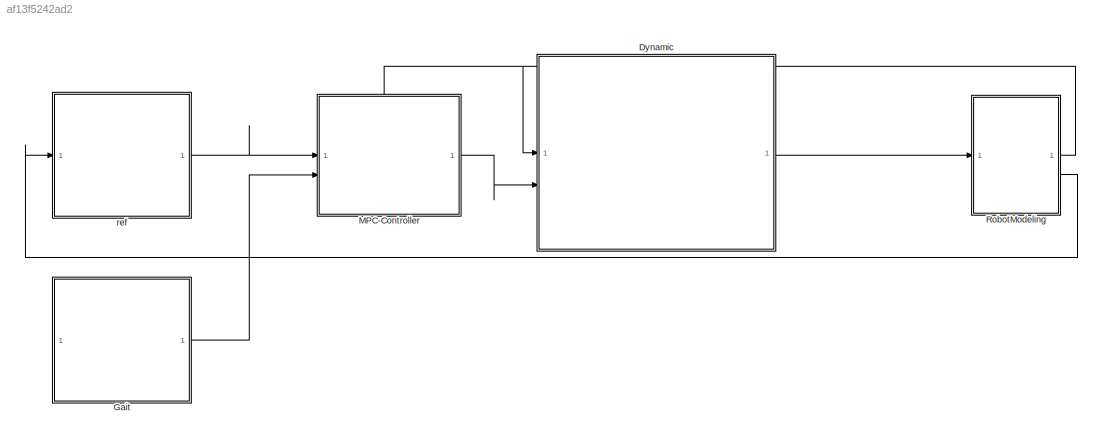
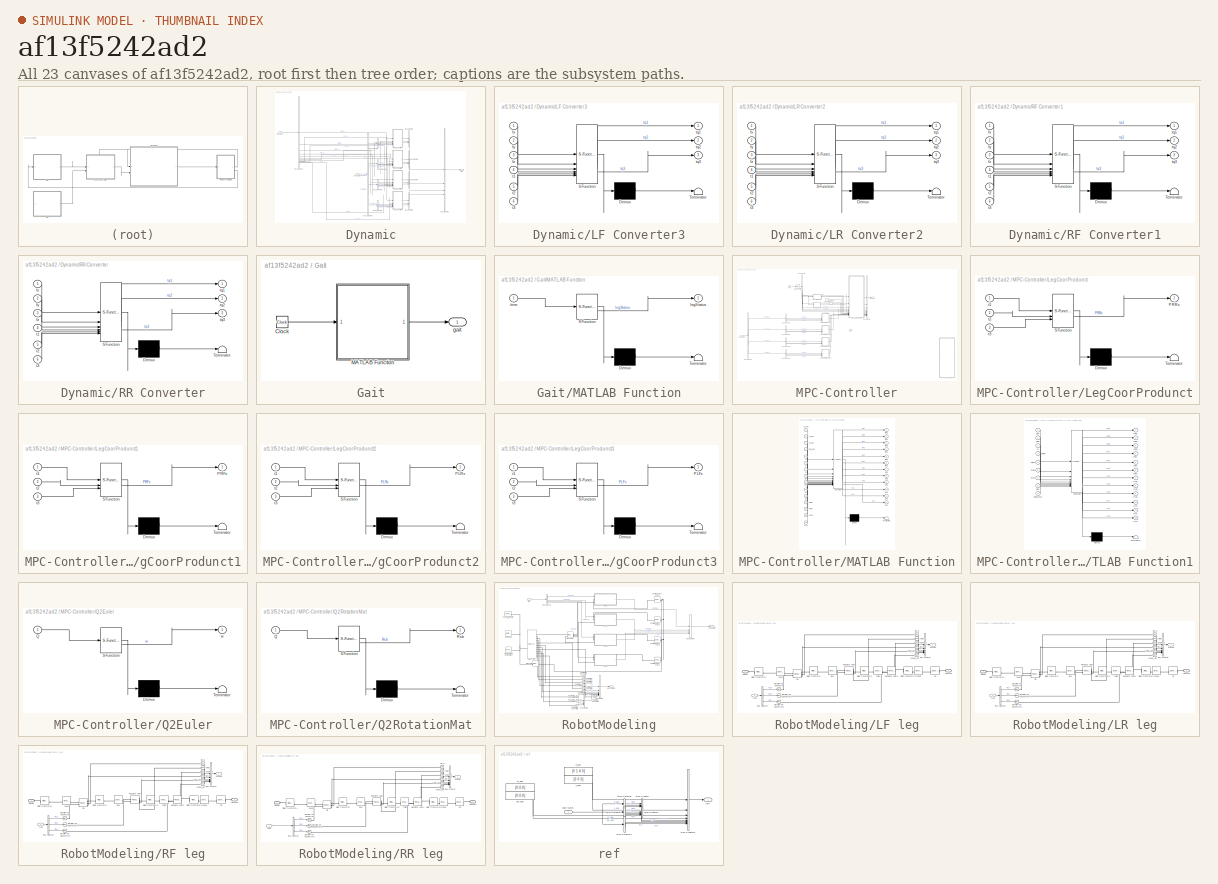
[diagram: thumbnail index - all 23 canvases of the model, root first then tree order]
MODEL slx_af13f5242ad2
KIND model
CONFIG AbsTol = auto
CONFIG EnableMultiTasking = off
CONFIG FixedStep = 0.01
CONFIG MaxStep = auto
CONFIG MinStep = auto
CONFIG RelTol = 1e-3
CONFIG SampleTimeConstraint = Unconstrained
CONFIG SolverName = daessc
CONFIG StartTime = 0.0
CONFIG StopTime = 10
BLOCK [SubSystem] Dynamic
BLOCK [BusCreator] Dynamic/Bus Creator2
  DisplayOption = bar
  InheritFromInputs = on
  Inputs = 3
BLOCK [BusCreator] Dynamic/Bus Creator3
  DisplayOption = bar
  InheritFromInputs = on
  Inputs = 3
BLOCK [BusCreator] Dynamic/Bus Creator4
  DisplayOption = bar
  InheritFromInputs = on
  Inputs = 3
BLOCK [BusCreator] Dynamic/Bus Creator5
  DisplayOption = bar
  InheritFromInputs = on
  Inputs = 3
BLOCK [BusCreator] Dynamic/Bus Creator6
  DisplayOption = bar
  InheritFromInputs = on
  Inputs = 4
BLOCK [BusSelector] Dynamic/Bus Selector
  OutputSignals = fRR1,fRR2,fRR3,fRF1,fRF2,fRF3,fLR1,fLR2,fLR3,fLF1,fLF2,fLF3
BLOCK [BusSelector] Dynamic/Bus Selector2
  OutputSignals = RRstates,RFstates,LRstates,LFstates
BLOCK [BusSelector] Dynamic/Bus Selector3
  OutputSignals = signal1,signal2,signal3
BLOCK [BusSelector] Dynamic/Bus Selector4
  OutputSignals = signal1,signal2,signal3
BLOCK [BusSelector] Dynamic/Bus Selector5
  OutputSignals = signal1,signal2,signal3
BLOCK [BusSelector] Dynamic/Bus Selector6
  OutputSignals = signal1,signal2,signal3
BLOCK [SubSystem] Dynamic/LF Converter3
  ErrorFcn = Stateflow.Translate.translate
  PermitHierarchicalResolution = ExplicitOnly
  SFBlockType = MATLAB Function
  TreatAsAtomicUnit = on
BLOCK [Demux] Dynamic/LF Converter3/ Demux 
  Outputs = 1
BLOCK [S-Function] Dynamic/LF Converter3/ SFunction 
  EnableBusSupport = on
  FunctionName = sf_sfun
  PortCounts = [6 4]
  SFcnIsStateOwnerBlock = off
  SFunctionDeploymentMode = off
  Tag = Stateflow S-Function 4
BLOCK [Terminator] Dynamic/LF Converter3/ Terminator 
BLOCK [Inport] Dynamic/LF Converter3/fx
BLOCK [Inport] Dynamic/LF Converter3/fy
  Port = 2
BLOCK [Inport] Dynamic/LF Converter3/fz
  Port = 3
BLOCK [Inport] Dynamic/LF Converter3/t1
  Port = 4
BLOCK [Inport] Dynamic/LF Converter3/t2
  Port = 5
BLOCK [Inport] Dynamic/LF Converter3/t3
  Port = 6
BLOCK [Outport] Dynamic/LF Converter3/tq1
BLOCK [Outport] Dynamic/LF Converter3/tq2
  Port = 2
BLOCK [Outport] Dynamic/LF Converter3/tq3
  Port = 3
BLOCK [SubSystem] Dynamic/LR Converter2
  ErrorFcn = Stateflow.Translate.translate
  PermitHierarchicalResolution = ExplicitOnly
  SFBlockType = MATLAB Function
  TreatAsAtomicUnit = on
BLOCK [Demux] Dynamic/LR Converter2/ Demux 
  Outputs = 1
BLOCK [S-Function] Dynamic/LR Converter2/ SFunction 
  EnableBusSupport = on
  FunctionName = sf_sfun
  PortCounts = [6 4]
  SFcnIsStateOwnerBlock = off
  SFunctionDeploymentMode = off
  Tag = Stateflow S-Function 3
BLOCK [Terminator] Dynamic/LR Converter2/ Terminator 
BLOCK [Inport] Dynamic/LR Converter2/fx
BLOCK [Inport] Dynamic/LR Converter2/fy
  Port = 2
BLOCK [Inport] Dynamic/LR Converter2/fz
  Port = 3
BLOCK [Inport] Dynamic/LR Converter2/t1
  Port = 4
BLOCK [Inport] Dynamic/LR Converter2/t2
  Port = 5
BLOCK [Inport] Dynamic/LR Converter2/t3
  Port = 6
BLOCK [Outport] Dynamic/LR Converter2/tq1
BLOCK [Outport] Dynamic/LR Converter2/tq2
  Port = 2
BLOCK [Outport] Dynamic/LR Converter2/tq3
  Port = 3
BLOCK [Inport] Dynamic/Legs States
BLOCK [SubSystem] Dynamic/RF Converter1
  ErrorFcn = Stateflow.Translate.translate
  PermitHierarchicalResolution = ExplicitOnly
  SFBlockType = MATLAB Function
  TreatAsAtomicUnit = on
BLOCK [Demux] Dynamic/RF Converter1/ Demux 
  Outputs = 1
BLOCK [S-Function] Dynamic/RF Converter1/ SFunction 
  EnableBusSupport = on
  FunctionName = sf_sfun
  PortCounts = [6 4]
  SFcnIsStateOwnerBlock = off
  SFunctionDeploymentMode = off
  Tag = Stateflow S-Function 1
BLOCK [Terminator] Dynamic/RF Converter1/ Terminator 
BLOCK [Inport] Dynamic/RF Converter1/fx
BLOCK [Inport] Dynamic/RF Converter1/fy
  Port = 2
BLOCK [Inport] Dynamic/RF Converter1/fz
  Port = 3
BLOCK [Inport] Dynamic/RF Converter1/t1
  Port = 4
BLOCK [Inport] Dynamic/RF Converter1/t2
  Port = 5
BLOCK [Inport] Dynamic/RF Converter1/t3
  Port = 6
BLOCK [Outport] Dynamic/RF Converter1/tq1
BLOCK [Outport] Dynamic/RF Converter1/tq2
  Port = 2
BLOCK [Outport] Dynamic/RF Converter1/tq3
  Port = 3
BLOCK [SubSystem] Dynamic/RR Converter
  ErrorFcn = Stateflow.Translate.translate
  PermitHierarchicalResolution = ExplicitOnly
  SFBlockType = MATLAB Function
  TreatAsAtomicUnit = on
BLOCK [Demux] Dynamic/RR Converter/ Demux 
  Outputs = 1
BLOCK [S-Function] Dynamic/RR Converter/ SFunction 
  EnableBusSupport = on
  FunctionName = sf_sfun
  PortCounts = [6 4]
  SFcnIsStateOwnerBlock = off
  SFunctionDeploymentMode = off
  Tag = Stateflow S-Function 2
BLOCK [Terminator] Dynamic/RR Converter/ Terminator 
BLOCK [Inport] Dynamic/RR Converter/fx
BLOCK [Inport] Dynamic/RR Converter/fy
  Port = 2
BLOCK [Inport] Dynamic/RR Converter/fz
  Port = 3
BLOCK [Inport] Dynamic/RR Converter/t1
  Port = 4
BLOCK [Inport] Dynamic/RR Converter/t2
  Port = 5
BLOCK [Inport] Dynamic/RR Converter/t3
  Port = 6
BLOCK [Outport] Dynamic/RR Converter/tq1
BLOCK [Outport] Dynamic/RR Converter/tq2
  Port = 2
BLOCK [Outport] Dynamic/RR Converter/tq3
  Port = 3
BLOCK [Inport] Dynamic/tipForces
  Port = 2
BLOCK [Outport] Dynamic/trqs
BLOCK [SubSystem] Gait
BLOCK [Clock] Gait/Clock
BLOCK [SubSystem] Gait/MATLAB Function
  ErrorFcn = Stateflow.Translate.translate
  PermitHierarchicalResolution = ExplicitOnly
  SFBlockType = MATLAB Function
  TreatAsAtomicUnit = on
BLOCK [Demux] Gait/MATLAB Function/ Demux 
  Outputs = 1
BLOCK [S-Function] Gait/MATLAB Function/ SFunction 
  EnableBusSupport = on
  FunctionName = sf_sfun
  PortCounts = [1 2]
  SFcnIsStateOwnerBlock = off
  SFunctionDeploymentMode = off
  Tag = Stateflow S-Function 12
BLOCK [Terminator] Gait/MATLAB Function/ Terminator 
BLOCK [Outport] Gait/MATLAB Function/legStatus
BLOCK [Inport] Gait/MATLAB Function/time
BLOCK [Outport] Gait/gait
BLOCK [SubSystem] MPC-Controller
  PortSchema = {"entries":[{"content":{"sides":[{"content":{"connectorIds":["In1","In2"]},"type":"ConnectorPlacement.EquallySpacedRectSide","uuid":"82207ac2-498d-428d-bb4d-b0457fff2070"},{"content":{"connectorIds":["Out1"],"side":"RIGHT"},"type":"ConnectorPlacement.EquallySpacedRectSide","uuid":"62017463-8491-4b37-95c8-f619666068a7"},{"content":{"connectorIds":["In3"],"side":"TOP"},"type":"ConnectorPlacement.Equ...<+251ch>
BLOCK [BusCreator] MPC-Controller/Bus Creator
  DisplayOption = bar
  InheritFromInputs = on
  Inputs = 12
BLOCK [BusSelector] MPC-Controller/Bus Selector
  OutputSignals = p_des,v_des,w_des,dw_des,p_cur,v_cur,w,Q
BLOCK [BusSelector] MPC-Controller/Bus Selector2
  OutputSignals = RRstates,RFstates,LRstates,LFstates
BLOCK [BusSelector] MPC-Controller/Bus Selector3
  OutputSignals = signal1,signal2,signal3
BLOCK [BusSelector] MPC-Controller/Bus Selector4
  OutputSignals = signal1,signal2,signal3
BLOCK [BusSelector] MPC-Controller/Bus Selector5
  OutputSignals = signal1,signal2,signal3
BLOCK [BusSelector] MPC-Controller/Bus Selector6
  OutputSignals = signal1,signal2,signal3
BLOCK [Constant] MPC-Controller/Constant1
  Value = 5
BLOCK [Constant] MPC-Controller/Constant2
  Value = [1 0 0;0 1 0;0 0 1]
BLOCK [SubSystem] MPC-Controller/LegCoorProdunct
  ErrorFcn = Stateflow.Translate.translate
  PermitHierarchicalResolution = ExplicitOnly
  SFBlockType = MATLAB Function
  TreatAsAtomicUnit = on
BLOCK [Demux] MPC-Controller/LegCoorProdunct/ Demux 
  Outputs = 1
BLOCK [S-Function] MPC-Controller/LegCoorProdunct/ SFunction 
  EnableBusSupport = on
  FunctionName = sf_sfun
  PortCounts = [3 2]
  SFcnIsStateOwnerBlock = off
  SFunctionDeploymentMode = off
  Tag = Stateflow S-Function 5
BLOCK [Terminator] MPC-Controller/LegCoorProdunct/ Terminator 
BLOCK [Outport] MPC-Controller/LegCoorProdunct/PRRx
BLOCK [Inport] MPC-Controller/LegCoorProdunct/t1
BLOCK [Inport] MPC-Controller/LegCoorProdunct/t2
  Port = 2
BLOCK [Inport] MPC-Controller/LegCoorProdunct/t3
  Port = 3
BLOCK [SubSystem] MPC-Controller/LegCoorProdunct1
  ErrorFcn = Stateflow.Translate.translate
  PermitHierarchicalResolution = ExplicitOnly
  SFBlockType = MATLAB Function
  TreatAsAtomicUnit = on
BLOCK [Demux] MPC-Controller/LegCoorProdunct1/ Demux 
  Outputs = 1
BLOCK [S-Function] MPC-Controller/LegCoorProdunct1/ SFunction 
  EnableBusSupport = on
  FunctionName = sf_sfun
  PortCounts = [3 2]
  SFcnIsStateOwnerBlock = off
  SFunctionDeploymentMode = off
  Tag = Stateflow S-Function 6
BLOCK [Terminator] MPC-Controller/LegCoorProdunct1/ Terminator 
BLOCK [Outport] MPC-Controller/LegCoorProdunct1/PRFx
BLOCK [Inport] MPC-Controller/LegCoorProdunct1/t1
BLOCK [Inport] MPC-Controller/LegCoorProdunct1/t2
  Port = 2
BLOCK [Inport] MPC-Controller/LegCoorProdunct1/t3
  Port = 3
BLOCK [SubSystem] MPC-Controller/LegCoorProdunct2
  ErrorFcn = Stateflow.Translate.translate
  PermitHierarchicalResolution = ExplicitOnly
  SFBlockType = MATLAB Function
  TreatAsAtomicUnit = on
BLOCK [Demux] MPC-Controller/LegCoorProdunct2/ Demux 
  Outputs = 1
BLOCK [S-Function] MPC-Controller/LegCoorProdunct2/ SFunction 
  EnableBusSupport = on
  FunctionName = sf_sfun
  PortCounts = [3 2]
  SFcnIsStateOwnerBlock = off
  SFunctionDeploymentMode = off
  Tag = Stateflow S-Function 7
BLOCK [Terminator] MPC-Controller/LegCoorProdunct2/ Terminator 
BLOCK [Outport] MPC-Controller/LegCoorProdunct2/PLRx
BLOCK [Inport] MPC-Controller/LegCoorProdunct2/t1
BLOCK [Inport] MPC-Controller/LegCoorProdunct2/t2
  Port = 2
BLOCK [Inport] MPC-Controller/LegCoorProdunct2/t3
  Port = 3
BLOCK [SubSystem] MPC-Controller/LegCoorProdunct3
  ErrorFcn = Stateflow.Translate.translate
  PermitHierarchicalResolution = ExplicitOnly
  SFBlockType = MATLAB Function
  TreatAsAtomicUnit = on
BLOCK [Demux] MPC-Controller/LegCoorProdunct3/ Demux 
  Outputs = 1
BLOCK [S-Function] MPC-Controller/LegCoorProdunct3/ SFunction 
  EnableBusSupport = on
  FunctionName = sf_sfun
  PortCounts = [3 2]
  SFcnIsStateOwnerBlock = off
  SFunctionDeploymentMode = off
  Tag = Stateflow S-Function 8
BLOCK [Terminator] MPC-Controller/LegCoorProdunct3/ Terminator 
BLOCK [Outport] MPC-Controller/LegCoorProdunct3/PLFx
BLOCK [Inport] MPC-Controller/LegCoorProdunct3/t1
BLOCK [Inport] MPC-Controller/LegCoorProdunct3/t2
  Port = 2
BLOCK [Inport] MPC-Controller/LegCoorProdunct3/t3
  Port = 3
BLOCK [Inport] MPC-Controller/Legs States
  Port = 3
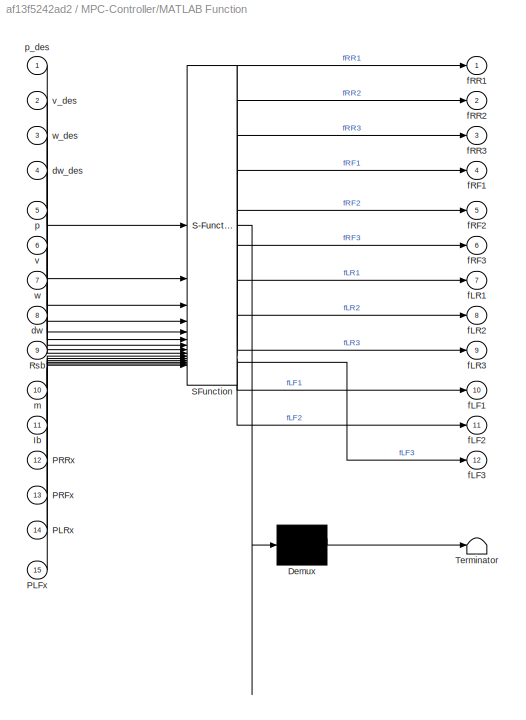
BLOCK [SubSystem] MPC-Controller/MATLAB Function
  ErrorFcn = Stateflow.Translate.translate
  PermitHierarchicalResolution = ExplicitOnly
  SFBlockType = MATLAB Function
  TreatAsAtomicUnit = on
BLOCK [Demux] MPC-Controller/MATLAB Function/ Demux 
  Outputs = 1
BLOCK [S-Function] MPC-Controller/MATLAB Function/ SFunction 
  EnableBusSupport = on
  FunctionName = sf_sfun
  PortCounts = [15 13]
  SFcnIsStateOwnerBlock = off
  SFunctionDeploymentMode = off
  Tag = Stateflow S-Function 10
BLOCK [Terminator] MPC-Controller/MATLAB Function/ Terminator 
BLOCK [Inport] MPC-Controller/MATLAB Function/Ib
  Port = 11
BLOCK [Inport] MPC-Controller/MATLAB Function/PLFx
  Port = 15
BLOCK [Inport] MPC-Controller/MATLAB Function/PLRx
  Port = 14
BLOCK [Inport] MPC-Controller/MATLAB Function/PRFx
  Port = 13
BLOCK [Inport] MPC-Controller/MATLAB Function/PRRx
  Port = 12
BLOCK [Inport] MPC-Controller/MATLAB Function/Rsb
  Port = 9
BLOCK [Inport] MPC-Controller/MATLAB Function/dw
  Port = 8
BLOCK [Inport] MPC-Controller/MATLAB Function/dw_des
  Port = 4
BLOCK [Outport] MPC-Controller/MATLAB Function/fLF1
  Port = 10
BLOCK [Outport] MPC-Controller/MATLAB Function/fLF2
  Port = 11
BLOCK [Outport] MPC-Controller/MATLAB Function/fLF3
  Port = 12
BLOCK [Outport] MPC-Controller/MATLAB Function/fLR1
  Port = 7
BLOCK [Outport] MPC-Controller/MATLAB Function/fLR2
  Port = 8
BLOCK [Outport] MPC-Controller/MATLAB Function/fLR3
  Port = 9
BLOCK [Outport] MPC-Controller/MATLAB Function/fRF1
  Port = 4
BLOCK [Outport] MPC-Controller/MATLAB Function/fRF2
  Port = 5
BLOCK [Outport] MPC-Controller/MATLAB Function/fRF3
  Port = 6
BLOCK [Outport] MPC-Controller/MATLAB Function/fRR1
BLOCK [Outport] MPC-Controller/MATLAB Function/fRR2
  Port = 2
BLOCK [Outport] MPC-Controller/MATLAB Function/fRR3
  Port = 3
BLOCK [Inport] MPC-Controller/MATLAB Function/m
  Port = 10
BLOCK [Inport] MPC-Controller/MATLAB Function/p
  Port = 5
BLOCK [Inport] MPC-Controller/MATLAB Function/p_des
BLOCK [Inport] MPC-Controller/MATLAB Function/v
  Port = 6
BLOCK [Inport] MPC-Controller/MATLAB Function/v_des
  Port = 2
BLOCK [Inport] MPC-Controller/MATLAB Function/w
  Port = 7
BLOCK [Inport] MPC-Controller/MATLAB Function/w_des
  Port = 3
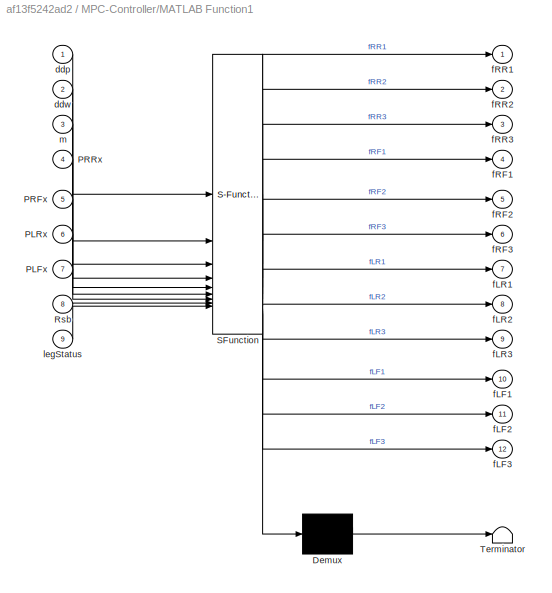
BLOCK [SubSystem] MPC-Controller/MATLAB Function1
  Commented = on
  ErrorFcn = Stateflow.Translate.translate
  PermitHierarchicalResolution = ExplicitOnly
  SFBlockType = MATLAB Function
  TreatAsAtomicUnit = on
BLOCK [Demux] MPC-Controller/MATLAB Function1/ Demux 
  Outputs = 1
BLOCK [S-Function] MPC-Controller/MATLAB Function1/ SFunction 
  EnableBusSupport = on
  FunctionName = sf_sfun
  PortCounts = [9 13]
  SFcnIsStateOwnerBlock = off
  SFunctionDeploymentMode = off
  Tag = Stateflow S-Function 11
BLOCK [Terminator] MPC-Controller/MATLAB Function1/ Terminator 
BLOCK [Inport] MPC-Controller/MATLAB Function1/PLFx
  Port = 7
BLOCK [Inport] MPC-Controller/MATLAB Function1/PLRx
  Port = 6
BLOCK [Inport] MPC-Controller/MATLAB Function1/PRFx
  Port = 5
BLOCK [Inport] MPC-Controller/MATLAB Function1/PRRx
  Port = 4
BLOCK [Inport] MPC-Controller/MATLAB Function1/Rsb
  Port = 8
BLOCK [Inport] MPC-Controller/MATLAB Function1/ddp
BLOCK [Inport] MPC-Controller/MATLAB Function1/ddw
  Port = 2
BLOCK [Outport] MPC-Controller/MATLAB Function1/fLF1
  Port = 10
BLOCK [Outport] MPC-Controller/MATLAB Function1/fLF2
  Port = 11
BLOCK [Outport] MPC-Controller/MATLAB Function1/fLF3
  Port = 12
BLOCK [Outport] MPC-Controller/MATLAB Function1/fLR1
  Port = 7
BLOCK [Outport] MPC-Controller/MATLAB Function1/fLR2
  Port = 8
BLOCK [Outport] MPC-Controller/MATLAB Function1/fLR3
  Port = 9
BLOCK [Outport] MPC-Controller/MATLAB Function1/fRF1
  Port = 4
BLOCK [Outport] MPC-Controller/MATLAB Function1/fRF2
  Port = 5
BLOCK [Outport] MPC-Controller/MATLAB Function1/fRF3
  Port = 6
BLOCK [Outport] MPC-Controller/MATLAB Function1/fRR1
BLOCK [Outport] MPC-Controller/MATLAB Function1/fRR2
  Port = 2
BLOCK [Outport] MPC-Controller/MATLAB Function1/fRR3
  Port = 3
BLOCK [Inport] MPC-Controller/MATLAB Function1/legStatus
  Port = 9
BLOCK [Inport] MPC-Controller/MATLAB Function1/m
  Port = 3
BLOCK [SubSystem] MPC-Controller/Q2Euler
  ErrorFcn = Stateflow.Translate.translate
  PermitHierarchicalResolution = ExplicitOnly
  SFBlockType = MATLAB Function
  TreatAsAtomicUnit = on
BLOCK [Demux] MPC-Controller/Q2Euler/ Demux 
  Outputs = 1
BLOCK [S-Function] MPC-Controller/Q2Euler/ SFunction 
  EnableBusSupport = on
  FunctionName = sf_sfun
  PortCounts = [1 2]
  SFcnIsStateOwnerBlock = off
  SFunctionDeploymentMode = off
  Tag = Stateflow S-Function 13
BLOCK [Terminator] MPC-Controller/Q2Euler/ Terminator 
BLOCK [Inport] MPC-Controller/Q2Euler/Q
BLOCK [Outport] MPC-Controller/Q2Euler/w
BLOCK [SubSystem] MPC-Controller/Q2RotationMat
  ErrorFcn = Stateflow.Translate.translate
  PermitHierarchicalResolution = ExplicitOnly
  SFBlockType = MATLAB Function
  TreatAsAtomicUnit = on
BLOCK [Demux] MPC-Controller/Q2RotationMat/ Demux 
  Outputs = 1
BLOCK [S-Function] MPC-Controller/Q2RotationMat/ SFunction 
  EnableBusSupport = on
  FunctionName = sf_sfun
  PortCounts = [1 2]
  SFcnIsStateOwnerBlock = off
  SFunctionDeploymentMode = off
  Tag = Stateflow S-Function 9
BLOCK [Terminator] MPC-Controller/Q2RotationMat/ Terminator 
BLOCK [Inport] MPC-Controller/Q2RotationMat/Q
BLOCK [Outport] MPC-Controller/Q2RotationMat/Rsb
BLOCK [RateTransition] MPC-Controller/Rate Transition
  OutPortSampleTime = 0.001
BLOCK [Inport] MPC-Controller/gait
  Port = 2
BLOCK [Inport] MPC-Controller/refs
BLOCK [Outport] MPC-Controller/tipForces
BLOCK [SubSystem] RobotModeling
BLOCK [Outport] RobotModeling/ body states
  Port = 2
BLOCK [Reference] RobotModeling/6-DOF Joint  REF=sm_lib/Joints/6-DOF Joint
  SourceBlock = sm_lib/Joints/6-DOF Joint
  SourceType = 6-DOF Joint
BLOCK [Reference] RobotModeling/Brick Solid  REF=sm_lib/Body Elements/Brick Solid
  SourceBlock = sm_lib/Body Elements/Brick Solid
  SourceType = Brick Solid
BLOCK [Reference] RobotModeling/Brick Solid1  REF=sm_lib/Body Elements/Brick Solid
  SourceBlock = sm_lib/Body Elements/Brick Solid
  SourceType = Brick Solid
BLOCK [BusCreator] RobotModeling/Bus Creator
  DisplayOption = bar
  InheritFromInputs = on
  Inputs = px,py,pz,vx,vy,vz,w,Q
BLOCK [BusCreator] RobotModeling/Bus Creator1
  DisplayOption = bar
  InheritFromInputs = on
  Inputs = 3
BLOCK [BusCreator] RobotModeling/Bus Creator4
  DisplayOption = bar
  InheritFromInputs = on
  Inputs = RRstates,RFstates,LRstates,LFstates
BLOCK [BusSelector] RobotModeling/Bus Selector
  OutputSignals = signal1,signal2,signal3,signal4
BLOCK [SubSystem] RobotModeling/LF leg
BLOCK [BusCreator] RobotModeling/LF leg/Bus Creator
  DisplayOption = bar
  InheritFromInputs = on
  Inputs = 6
BLOCK [BusSelector] RobotModeling/LF leg/Bus Selector
  OutputSignals = tq1,tq2,tq3
BLOCK [Reference] RobotModeling/LF leg/Revolute Joint  REF=sm_lib/Joints/Revolute Joint
  SourceBlock = sm_lib/Joints/Revolute Joint
  SourceType = Revolute Joint
BLOCK [Reference] RobotModeling/LF leg/Revolute Joint1  REF=sm_lib/Joints/Revolute Joint
  SourceBlock = sm_lib/Joints/Revolute Joint
  SourceType = Revolute Joint
BLOCK [Reference] RobotModeling/LF leg/Rigid Transform  REF=sm_lib/Frames and
Transforms/Rigid
Transform
  SourceBlock = sm_lib/Frames and\nTransforms/Rigid\nTransform
  SourceType = Rigid\nTransform
BLOCK [Reference] RobotModeling/LF leg/Rigid Transform2  REF=sm_lib/Frames and
Transforms/Rigid
Transform
  SourceBlock = sm_lib/Frames and\nTransforms/Rigid\nTransform
  SourceType = Rigid\nTransform
BLOCK [Reference] RobotModeling/LF leg/Rigid Transform3  REF=sm_lib/Frames and
Transforms/Rigid
Transform
  SourceBlock = sm_lib/Frames and\nTransforms/Rigid\nTransform
  SourceType = Rigid\nTransform
BLOCK [Reference] RobotModeling/LF leg/Rigid Transform4  REF=sm_lib/Frames and
Transforms/Rigid
Transform
  SourceBlock = sm_lib/Frames and\nTransforms/Rigid\nTransform
  SourceType = Rigid\nTransform
BLOCK [Reference] RobotModeling/LF leg/Simulink-PS Converter  REF=nesl_utility/Simulink-PS
Converter
  SourceBlock = nesl_utility/Simulink-PS\nConverter
  SourceType = Simulink-PS\nConverter
BLOCK [Reference] RobotModeling/LF leg/Simulink-PS Converter1  REF=nesl_utility/Simulink-PS
Converter
  SourceBlock = nesl_utility/Simulink-PS\nConverter
  SourceType = Simulink-PS\nConverter
BLOCK [Reference] RobotModeling/LF leg/Simulink-PS Converter2  REF=nesl_utility/Simulink-PS
Converter
  SourceBlock = nesl_utility/Simulink-PS\nConverter
  SourceType = Simulink-PS\nConverter
BLOCK [Reference] RobotModeling/LF leg/base  REF=sm_lib/Body Elements/Brick Solid
  SourceBlock = sm_lib/Body Elements/Brick Solid
  SourceType = Brick Solid
BLOCK [Reference] RobotModeling/LF leg/hip  REF=sm_lib/Joints/Revolute Joint
  SourceBlock = sm_lib/Joints/Revolute Joint
  SourceType = Revolute Joint
BLOCK [Reference] RobotModeling/LF leg/hip_dq  REF=nesl_utility/PS-Simulink
Converter
  SourceBlock = nesl_utility/PS-Simulink\nConverter
  SourceType = PS-Simulink\nConverter
BLOCK [Reference] RobotModeling/LF leg/hip_q  REF=nesl_utility/PS-Simulink
Converter
  SourceBlock = nesl_utility/PS-Simulink\nConverter
  SourceType = PS-Simulink\nConverter
BLOCK [PMIOPort] RobotModeling/LF leg/hipcon
  Port = 2
  Side = Left
BLOCK [Reference] RobotModeling/LF leg/link1  REF=sm_lib/Body Elements/Brick Solid
  SourceBlock = sm_lib/Body Elements/Brick Solid
  SourceType = Brick Solid
BLOCK [Reference] RobotModeling/LF leg/shank  REF=sm_lib/Body Elements/Brick Solid
  SourceBlock = sm_lib/Body Elements/Brick Solid
  SourceType = Brick Solid
BLOCK [Reference] RobotModeling/LF leg/shank_dq  REF=nesl_utility/PS-Simulink
Converter
  SourceBlock = nesl_utility/PS-Simulink\nConverter
  SourceType = PS-Simulink\nConverter
BLOCK [Reference] RobotModeling/LF leg/shank_q  REF=nesl_utility/PS-Simulink
Converter
  SourceBlock = nesl_utility/PS-Simulink\nConverter
  SourceType = PS-Simulink\nConverter
BLOCK [Outport] RobotModeling/LF leg/states
BLOCK [Reference] RobotModeling/LF leg/thigh  REF=sm_lib/Body Elements/Brick Solid
  SourceBlock = sm_lib/Body Elements/Brick Solid
  SourceType = Brick Solid
BLOCK [Reference] RobotModeling/LF leg/thigh_dq  REF=nesl_utility/PS-Simulink
Converter
  SourceBlock = nesl_utility/PS-Simulink\nConverter
  SourceType = PS-Simulink\nConverter
BLOCK [Reference] RobotModeling/LF leg/thigh_q  REF=nesl_utility/PS-Simulink
Converter
  SourceBlock = nesl_utility/PS-Simulink\nConverter
  SourceType = PS-Simulink\nConverter
BLOCK [Reference] RobotModeling/LF leg/tip  REF=sm_lib/Body Elements/Spherical Solid
  SourceBlock = sm_lib/Body Elements/Spherical Solid
  SourceType = Spherical Solid
BLOCK [PMIOPort] RobotModeling/LF leg/tiptouch
  Side = Left
BLOCK [Inport] RobotModeling/LF leg/trqs
BLOCK [SubSystem] RobotModeling/LR leg
BLOCK [BusCreator] RobotModeling/LR leg/Bus Creator
  DisplayOption = bar
  InheritFromInputs = on
  Inputs = 6
BLOCK [BusSelector] RobotModeling/LR leg/Bus Selector
  OutputSignals = tq1,tq2,tq3
BLOCK [Reference] RobotModeling/LR leg/Revolute Joint  REF=sm_lib/Joints/Revolute Joint
  SourceBlock = sm_lib/Joints/Revolute Joint
  SourceType = Revolute Joint
BLOCK [Reference] RobotModeling/LR leg/Revolute Joint1  REF=sm_lib/Joints/Revolute Joint
  SourceBlock = sm_lib/Joints/Revolute Joint
  SourceType = Revolute Joint
BLOCK [Reference] RobotModeling/LR leg/Rigid Transform  REF=sm_lib/Frames and
Transforms/Rigid
Transform
  SourceBlock = sm_lib/Frames and\nTransforms/Rigid\nTransform
  SourceType = Rigid\nTransform
BLOCK [Reference] RobotModeling/LR leg/Rigid Transform2  REF=sm_lib/Frames and
Transforms/Rigid
Transform
  SourceBlock = sm_lib/Frames and\nTransforms/Rigid\nTransform
  SourceType = Rigid\nTransform
BLOCK [Reference] RobotModeling/LR leg/Rigid Transform3  REF=sm_lib/Frames and
Transforms/Rigid
Transform
  SourceBlock = sm_lib/Frames and\nTransforms/Rigid\nTransform
  SourceType = Rigid\nTransform
BLOCK [Reference] RobotModeling/LR leg/Rigid Transform4  REF=sm_lib/Frames and
Transforms/Rigid
Transform
  SourceBlock = sm_lib/Frames and\nTransforms/Rigid\nTransform
  SourceType = Rigid\nTransform
BLOCK [Reference] RobotModeling/LR leg/Simulink-PS Converter  REF=nesl_utility/Simulink-PS
Converter
  SourceBlock = nesl_utility/Simulink-PS\nConverter
  SourceType = Simulink-PS\nConverter
BLOCK [Reference] RobotModeling/LR leg/Simulink-PS Converter1  REF=nesl_utility/Simulink-PS
Converter
  SourceBlock = nesl_utility/Simulink-PS\nConverter
  SourceType = Simulink-PS\nConverter
BLOCK [Reference] RobotModeling/LR leg/Simulink-PS Converter2  REF=nesl_utility/Simulink-PS
Converter
  SourceBlock = nesl_utility/Simulink-PS\nConverter
  SourceType = Simulink-PS\nConverter
BLOCK [Reference] RobotModeling/LR leg/base  REF=sm_lib/Body Elements/Brick Solid
  SourceBlock = sm_lib/Body Elements/Brick Solid
  SourceType = Brick Solid
BLOCK [Reference] RobotModeling/LR leg/hip  REF=sm_lib/Joints/Revolute Joint
  SourceBlock = sm_lib/Joints/Revolute Joint
  SourceType = Revolute Joint
BLOCK [Reference] RobotModeling/LR leg/hip_dq  REF=nesl_utility/PS-Simulink
Converter
  SourceBlock = nesl_utility/PS-Simulink\nConverter
  SourceType = PS-Simulink\nConverter
BLOCK [Reference] RobotModeling/LR leg/hip_q  REF=nesl_utility/PS-Simulink
Converter
  SourceBlock = nesl_utility/PS-Simulink\nConverter
  SourceType = PS-Simulink\nConverter
BLOCK [PMIOPort] RobotModeling/LR leg/hipcon
  Port = 2
  Side = Left
BLOCK [Reference] RobotModeling/LR leg/link1  REF=sm_lib/Body Elements/Brick Solid
  SourceBlock = sm_lib/Body Elements/Brick Solid
  SourceType = Brick Solid
BLOCK [Reference] RobotModeling/LR leg/shank  REF=sm_lib/Body Elements/Brick Solid
  SourceBlock = sm_lib/Body Elements/Brick Solid
  SourceType = Brick Solid
BLOCK [Reference] RobotModeling/LR leg/shank_dq  REF=nesl_utility/PS-Simulink
Converter
  SourceBlock = nesl_utility/PS-Simulink\nConverter
  SourceType = PS-Simulink\nConverter
BLOCK [Reference] RobotModeling/LR leg/shank_q  REF=nesl_utility/PS-Simulink
Converter
  SourceBlock = nesl_utility/PS-Simulink\nConverter
  SourceType = PS-Simulink\nConverter
BLOCK [Outport] RobotModeling/LR leg/states
BLOCK [Reference] RobotModeling/LR leg/thigh  REF=sm_lib/Body Elements/Brick Solid
  SourceBlock = sm_lib/Body Elements/Brick Solid
  SourceType = Brick Solid
BLOCK [Reference] RobotModeling/LR leg/thigh_dq  REF=nesl_utility/PS-Simulink
Converter
  SourceBlock = nesl_utility/PS-Simulink\nConverter
  SourceType = PS-Simulink\nConverter
BLOCK [Reference] RobotModeling/LR leg/thigh_q  REF=nesl_utility/PS-Simulink
Converter
  SourceBlock = nesl_utility/PS-Simulink\nConverter
  SourceType = PS-Simulink\nConverter
BLOCK [Reference] RobotModeling/LR leg/tip  REF=sm_lib/Body Elements/Spherical Solid
  SourceBlock = sm_lib/Body Elements/Spherical Solid
  SourceType = Spherical Solid
BLOCK [PMIOPort] RobotModeling/LR leg/tiptouch
  Side = Left
BLOCK [Inport] RobotModeling/LR leg/trqs
BLOCK [Outport] RobotModeling/Legs States
BLOCK [Reference] RobotModeling/Mechanism Configuration  REF=sm_lib/Utilities/Mechanism
Configuration
  SourceBlock = sm_lib/Utilities/Mechanism\nConfiguration
  SourceType = Mechanism\nConfiguration
BLOCK [Reference] RobotModeling/PS-Simulink Converter  REF=nesl_utility/PS-Simulink
Converter
  SourceBlock = nesl_utility/PS-Simulink\nConverter
  SourceType = PS-Simulink\nConverter
BLOCK [Reference] RobotModeling/PS-Simulink Converter1  REF=nesl_utility/PS-Simulink
Converter
  SourceBlock = nesl_utility/PS-Simulink\nConverter
  SourceType = PS-Simulink\nConverter
BLOCK [Reference] RobotModeling/PS-Simulink Converter2  REF=nesl_utility/PS-Simulink
Converter
  SourceBlock = nesl_utility/PS-Simulink\nConverter
  SourceType = PS-Simulink\nConverter
BLOCK [Reference] RobotModeling/PS-Simulink Converter3  REF=nesl_utility/PS-Simulink
Converter
  SourceBlock = nesl_utility/PS-Simulink\nConverter
  SourceType = PS-Simulink\nConverter
BLOCK [Reference] RobotModeling/PS-Simulink Converter4  REF=nesl_utility/PS-Simulink
Converter
  SourceBlock = nesl_utility/PS-Simulink\nConverter
  SourceType = PS-Simulink\nConverter
BLOCK [Reference] RobotModeling/PS-Simulink Converter5  REF=nesl_utility/PS-Simulink
Converter
  SourceBlock = nesl_utility/PS-Simulink\nConverter
  SourceType = PS-Simulink\nConverter
BLOCK [Reference] RobotModeling/PS-Simulink Converter6  REF=nesl_utility/PS-Simulink
Converter
  SourceBlock = nesl_utility/PS-Simulink\nConverter
  SourceType = PS-Simulink\nConverter
BLOCK [Reference] RobotModeling/PS-Simulink Converter7  REF=nesl_utility/PS-Simulink
Converter
  SourceBlock = nesl_utility/PS-Simulink\nConverter
  SourceType = PS-Simulink\nConverter
BLOCK [Reference] RobotModeling/PS-Simulink Converter8  REF=nesl_utility/PS-Simulink
Converter
  SourceBlock = nesl_utility/PS-Simulink\nConverter
  SourceType = PS-Simulink\nConverter
BLOCK [Reference] RobotModeling/PS-Simulink Converter9  REF=nesl_utility/PS-Simulink
Converter
  SourceBlock = nesl_utility/PS-Simulink\nConverter
  SourceType = PS-Simulink\nConverter
BLOCK [SubSystem] RobotModeling/RF leg
BLOCK [BusCreator] RobotModeling/RF leg/Bus Creator
  DisplayOption = bar
  InheritFromInputs = on
  Inputs = 6
BLOCK [BusSelector] RobotModeling/RF leg/Bus Selector
  OutputSignals = tq1,tq2,tq3
BLOCK [Reference] RobotModeling/RF leg/Revolute Joint  REF=sm_lib/Joints/Revolute Joint
  SourceBlock = sm_lib/Joints/Revolute Joint
  SourceType = Revolute Joint
BLOCK [Reference] RobotModeling/RF leg/Revolute Joint1  REF=sm_lib/Joints/Revolute Joint
  SourceBlock = sm_lib/Joints/Revolute Joint
  SourceType = Revolute Joint
BLOCK [Reference] RobotModeling/RF leg/Rigid Transform  REF=sm_lib/Frames and
Transforms/Rigid
Transform
  SourceBlock = sm_lib/Frames and\nTransforms/Rigid\nTransform
  SourceType = Rigid\nTransform
BLOCK [Reference] RobotModeling/RF leg/Rigid Transform2  REF=sm_lib/Frames and
Transforms/Rigid
Transform
  SourceBlock = sm_lib/Frames and\nTransforms/Rigid\nTransform
  SourceType = Rigid\nTransform
BLOCK [Reference] RobotModeling/RF leg/Rigid Transform3  REF=sm_lib/Frames and
Transforms/Rigid
Transform
  SourceBlock = sm_lib/Frames and\nTransforms/Rigid\nTransform
  SourceType = Rigid\nTransform
BLOCK [Reference] RobotModeling/RF leg/Rigid Transform4  REF=sm_lib/Frames and
Transforms/Rigid
Transform
  SourceBlock = sm_lib/Frames and\nTransforms/Rigid\nTransform
  SourceType = Rigid\nTransform
BLOCK [Reference] RobotModeling/RF leg/Simulink-PS Converter  REF=nesl_utility/Simulink-PS
Converter
  SourceBlock = nesl_utility/Simulink-PS\nConverter
  SourceType = Simulink-PS\nConverter
BLOCK [Reference] RobotModeling/RF leg/Simulink-PS Converter1  REF=nesl_utility/Simulink-PS
Converter
  SourceBlock = nesl_utility/Simulink-PS\nConverter
  SourceType = Simulink-PS\nConverter
BLOCK [Reference] RobotModeling/RF leg/Simulink-PS Converter2  REF=nesl_utility/Simulink-PS
Converter
  SourceBlock = nesl_utility/Simulink-PS\nConverter
  SourceType = Simulink-PS\nConverter
BLOCK [Reference] RobotModeling/RF leg/base  REF=sm_lib/Body Elements/Brick Solid
  SourceBlock = sm_lib/Body Elements/Brick Solid
  SourceType = Brick Solid
BLOCK [Reference] RobotModeling/RF leg/hip  REF=sm_lib/Joints/Revolute Joint
  SourceBlock = sm_lib/Joints/Revolute Joint
  SourceType = Revolute Joint
BLOCK [Reference] RobotModeling/RF leg/hip_dq  REF=nesl_utility/PS-Simulink
Converter
  SourceBlock = nesl_utility/PS-Simulink\nConverter
  SourceType = PS-Simulink\nConverter
BLOCK [Reference] RobotModeling/RF leg/hip_q  REF=nesl_utility/PS-Simulink
Converter
  SourceBlock = nesl_utility/PS-Simulink\nConverter
  SourceType = PS-Simulink\nConverter
BLOCK [PMIOPort] RobotModeling/RF leg/hipcon
  Port = 2
  Side = Left
BLOCK [Reference] RobotModeling/RF leg/link1  REF=sm_lib/Body Elements/Brick Solid
  SourceBlock = sm_lib/Body Elements/Brick Solid
  SourceType = Brick Solid
BLOCK [Reference] RobotModeling/RF leg/shank  REF=sm_lib/Body Elements/Brick Solid
  SourceBlock = sm_lib/Body Elements/Brick Solid
  SourceType = Brick Solid
BLOCK [Reference] RobotModeling/RF leg/shank_dq  REF=nesl_utility/PS-Simulink
Converter
  SourceBlock = nesl_utility/PS-Simulink\nConverter
  SourceType = PS-Simulink\nConverter
BLOCK [Reference] RobotModeling/RF leg/shank_q  REF=nesl_utility/PS-Simulink
Converter
  SourceBlock = nesl_utility/PS-Simulink\nConverter
  SourceType = PS-Simulink\nConverter
BLOCK [Outport] RobotModeling/RF leg/states
BLOCK [Reference] RobotModeling/RF leg/thigh  REF=sm_lib/Body Elements/Brick Solid
  SourceBlock = sm_lib/Body Elements/Brick Solid
  SourceType = Brick Solid
BLOCK [Reference] RobotModeling/RF leg/thigh_dq  REF=nesl_utility/PS-Simulink
Converter
  SourceBlock = nesl_utility/PS-Simulink\nConverter
  SourceType = PS-Simulink\nConverter
BLOCK [Reference] RobotModeling/RF leg/thigh_q  REF=nesl_utility/PS-Simulink
Converter
  SourceBlock = nesl_utility/PS-Simulink\nConverter
  SourceType = PS-Simulink\nConverter
BLOCK [Reference] RobotModeling/RF leg/tip  REF=sm_lib/Body Elements/Spherical Solid
  SourceBlock = sm_lib/Body Elements/Spherical Solid
  SourceType = Spherical Solid
BLOCK [PMIOPort] RobotModeling/RF leg/tiptouch
  Side = Left
BLOCK [Inport] RobotModeling/RF leg/trqs
BLOCK [SubSystem] RobotModeling/RR leg
BLOCK [BusCreator] RobotModeling/RR leg/Bus Creator
  DisplayOption = bar
  InheritFromInputs = on
  Inputs = 6
BLOCK [BusSelector] RobotModeling/RR leg/Bus Selector
  OutputSignals = tq1,tq2,tq3
BLOCK [Reference] RobotModeling/RR leg/Revolute Joint  REF=sm_lib/Joints/Revolute Joint
  SourceBlock = sm_lib/Joints/Revolute Joint
  SourceType = Revolute Joint
BLOCK [Reference] RobotModeling/RR leg/Revolute Joint1  REF=sm_lib/Joints/Revolute Joint
  SourceBlock = sm_lib/Joints/Revolute Joint
  SourceType = Revolute Joint
BLOCK [Reference] RobotModeling/RR leg/Rigid Transform  REF=sm_lib/Frames and
Transforms/Rigid
Transform
  SourceBlock = sm_lib/Frames and\nTransforms/Rigid\nTransform
  SourceType = Rigid\nTransform
BLOCK [Reference] RobotModeling/RR leg/Rigid Transform2  REF=sm_lib/Frames and
Transforms/Rigid
Transform
  SourceBlock = sm_lib/Frames and\nTransforms/Rigid\nTransform
  SourceType = Rigid\nTransform
BLOCK [Reference] RobotModeling/RR leg/Rigid Transform3  REF=sm_lib/Frames and
Transforms/Rigid
Transform
  SourceBlock = sm_lib/Frames and\nTransforms/Rigid\nTransform
  SourceType = Rigid\nTransform
BLOCK [Reference] RobotModeling/RR leg/Rigid Transform4  REF=sm_lib/Frames and
Transforms/Rigid
Transform
  SourceBlock = sm_lib/Frames and\nTransforms/Rigid\nTransform
  SourceType = Rigid\nTransform
BLOCK [Reference] RobotModeling/RR leg/Simulink-PS Converter  REF=nesl_utility/Simulink-PS
Converter
  SourceBlock = nesl_utility/Simulink-PS\nConverter
  SourceType = Simulink-PS\nConverter
BLOCK [Reference] RobotModeling/RR leg/Simulink-PS Converter1  REF=nesl_utility/Simulink-PS
Converter
  SourceBlock = nesl_utility/Simulink-PS\nConverter
  SourceType = Simulink-PS\nConverter
BLOCK [Reference] RobotModeling/RR leg/Simulink-PS Converter2  REF=nesl_utility/Simulink-PS
Converter
  SourceBlock = nesl_utility/Simulink-PS\nConverter
  SourceType = Simulink-PS\nConverter
BLOCK [Reference] RobotModeling/RR leg/base  REF=sm_lib/Body Elements/Brick Solid
  SourceBlock = sm_lib/Body Elements/Brick Solid
  SourceType = Brick Solid
BLOCK [Reference] RobotModeling/RR leg/hip  REF=sm_lib/Joints/Revolute Joint
  SourceBlock = sm_lib/Joints/Revolute Joint
  SourceType = Revolute Joint
BLOCK [Reference] RobotModeling/RR leg/hip_dq  REF=nesl_utility/PS-Simulink
Converter
  SourceBlock = nesl_utility/PS-Simulink\nConverter
  SourceType = PS-Simulink\nConverter
BLOCK [Reference] RobotModeling/RR leg/hip_q  REF=nesl_utility/PS-Simulink
Converter
  SourceBlock = nesl_utility/PS-Simulink\nConverter
  SourceType = PS-Simulink\nConverter
BLOCK [PMIOPort] RobotModeling/RR leg/hipcon
  Port = 2
  Side = Left
BLOCK [Reference] RobotModeling/RR leg/link1  REF=sm_lib/Body Elements/Brick Solid
  SourceBlock = sm_lib/Body Elements/Brick Solid
  SourceType = Brick Solid
BLOCK [Reference] RobotModeling/RR leg/shank  REF=sm_lib/Body Elements/Brick Solid
  SourceBlock = sm_lib/Body Elements/Brick Solid
  SourceType = Brick Solid
BLOCK [Reference] RobotModeling/RR leg/shank_dq  REF=nesl_utility/PS-Simulink
Converter
  SourceBlock = nesl_utility/PS-Simulink\nConverter
  SourceType = PS-Simulink\nConverter
BLOCK [Reference] RobotModeling/RR leg/shank_q  REF=nesl_utility/PS-Simulink
Converter
  SourceBlock = nesl_utility/PS-Simulink\nConverter
  SourceType = PS-Simulink\nConverter
BLOCK [Outport] RobotModeling/RR leg/states
BLOCK [Reference] RobotModeling/RR leg/thigh  REF=sm_lib/Body Elements/Brick Solid
  SourceBlock = sm_lib/Body Elements/Brick Solid
  SourceType = Brick Solid
BLOCK [Reference] RobotModeling/RR leg/thigh_dq  REF=nesl_utility/PS-Simulink
Converter
  SourceBlock = nesl_utility/PS-Simulink\nConverter
  SourceType = PS-Simulink\nConverter
BLOCK [Reference] RobotModeling/RR leg/thigh_q  REF=nesl_utility/PS-Simulink
Converter
  SourceBlock = nesl_utility/PS-Simulink\nConverter
  SourceType = PS-Simulink\nConverter
BLOCK [Reference] RobotModeling/RR leg/tip  REF=sm_lib/Body Elements/Spherical Solid
  SourceBlock = sm_lib/Body Elements/Spherical Solid
  SourceType = Spherical Solid
BLOCK [PMIOPort] RobotModeling/RR leg/tiptouch
  Side = Left
BLOCK [Inport] RobotModeling/RR leg/trqs
BLOCK [Reference] RobotModeling/Solver Configuration  REF=nesl_utility/Solver
Configuration
  SourceBlock = nesl_utility/Solver\nConfiguration
  SourceType = Solver\nConfiguration
BLOCK [Reference] RobotModeling/Spatial Contact Force  REF=sm_lib/Forces and
Torques/Spatial
Contact Force
  SourceBlock = sm_lib/Forces and\nTorques/Spatial\nContact Force
  SourceType = Spatial\nContact Force
BLOCK [Reference] RobotModeling/Spatial Contact Force1  REF=sm_lib/Forces and
Torques/Spatial
Contact Force
  SourceBlock = sm_lib/Forces and\nTorques/Spatial\nContact Force
  SourceType = Spatial\nContact Force
BLOCK [Reference] RobotModeling/Spatial Contact Force2  REF=sm_lib/Forces and
Torques/Spatial
Contact Force
  SourceBlock = sm_lib/Forces and\nTorques/Spatial\nContact Force
  SourceType = Spatial\nContact Force
BLOCK [Reference] RobotModeling/Spatial Contact Force3  REF=sm_lib/Forces and
Torques/Spatial
Contact Force
  SourceBlock = sm_lib/Forces and\nTorques/Spatial\nContact Force
  SourceType = Spatial\nContact Force
BLOCK [Reference] RobotModeling/World Frame  REF=sm_lib/Frames and
Transforms/World Frame
  SourceBlock = sm_lib/Frames and\nTransforms/World Frame
  SourceType = World Frame
BLOCK [Inport] RobotModeling/trqs
BLOCK [SubSystem] ref
BLOCK [BusCreator] ref/Bus Creator
  DisplayOption = bar
  InheritFromInputs = on
  Inputs = 3
BLOCK [BusCreator] ref/Bus Creator1
  DisplayOption = bar
  InheritFromInputs = on
  Inputs = 3
BLOCK [BusCreator] ref/Bus Creator2
  DisplayOption = bar
  InheritFromInputs = on
  Inputs = p_des,v_des,w_des,dw_des,p_cur,v_cur,w,Q
BLOCK [BusSelector] ref/Bus Selector
  OutputSignals = px,py,pz
BLOCK [BusSelector] ref/Bus Selector1
  OutputSignals = vx,vy,vz
BLOCK [BusSelector] ref/Bus Selector7
  OutputSignals = w,Q
BLOCK [Inport] ref/body states
BLOCK [Constant] ref/dw_des
  Value = [0;0;0]
  VectorParams1D = off
BLOCK [Constant] ref/q_des
  Value = [0 1.4 0]
BLOCK [Outport] ref/refs
BLOCK [Constant] ref/v_des
  Value = [0 0 0]
BLOCK [Constant] ref/w_des
  Value = [0;0;0]
  VectorParams1D = off
LINE Dynamic/Bus Creator2:1 -> Dynamic/Bus Creator6:1
LINE Dynamic/Bus Creator3:1 -> Dynamic/Bus Creator6:2
LINE Dynamic/Bus Creator4:1 -> Dynamic/Bus Creator6:3
LINE Dynamic/Bus Creator5:1 -> Dynamic/Bus Creator6:4
LINE Dynamic/Bus Creator6:1 -> Dynamic/trqs:1
LINE Dynamic/Bus Selector2:1 -> Dynamic/Bus Selector3:1
LINE Dynamic/Bus Selector2:2 -> Dynamic/Bus Selector4:1
LINE Dynamic/Bus Selector2:3 -> Dynamic/Bus Selector5:1
LINE Dynamic/Bus Selector2:4 -> Dynamic/Bus Selector6:1
LINE Dynamic/Bus Selector3:1 -> Dynamic/RR Converter:4
LINE Dynamic/Bus Selector3:2 -> Dynamic/RR Converter:5
LINE Dynamic/Bus Selector3:3 -> Dynamic/RR Converter:6
LINE Dynamic/Bus Selector4:1 -> Dynamic/RF Converter1:4
LINE Dynamic/Bus Selector4:2 -> Dynamic/RF Converter1:5
LINE Dynamic/Bus Selector4:3 -> Dynamic/RF Converter1:6
LINE Dynamic/Bus Selector5:1 -> Dynamic/LR Converter2:4
LINE Dynamic/Bus Selector5:2 -> Dynamic/LR Converter2:5
LINE Dynamic/Bus Selector5:3 -> Dynamic/LR Converter2:6
LINE Dynamic/Bus Selector6:1 -> Dynamic/LF Converter3:4
LINE Dynamic/Bus Selector6:2 -> Dynamic/LF Converter3:5
LINE Dynamic/Bus Selector6:3 -> Dynamic/LF Converter3:6
LINE Dynamic/Bus Selector:1 -> Dynamic/RR Converter:1
LINE Dynamic/Bus Selector:10 -> Dynamic/LF Converter3:1
LINE Dynamic/Bus Selector:11 -> Dynamic/LF Converter3:2
LINE Dynamic/Bus Selector:12 -> Dynamic/LF Converter3:3
LINE Dynamic/Bus Selector:2 -> Dynamic/RR Converter:2
LINE Dynamic/Bus Selector:3 -> Dynamic/RR Converter:3
LINE Dynamic/Bus Selector:4 -> Dynamic/RF Converter1:1
LINE Dynamic/Bus Selector:5 -> Dynamic/RF Converter1:2
LINE Dynamic/Bus Selector:6 -> Dynamic/RF Converter1:3
LINE Dynamic/Bus Selector:7 -> Dynamic/LR Converter2:1
LINE Dynamic/Bus Selector:8 -> Dynamic/LR Converter2:2
LINE Dynamic/Bus Selector:9 -> Dynamic/LR Converter2:3
LINE Dynamic/LF Converter3:1 -> Dynamic/Bus Creator5:1
LINE Dynamic/LF Converter3:2 -> Dynamic/Bus Creator5:2
LINE Dynamic/LF Converter3:3 -> Dynamic/Bus Creator5:3
LINE Dynamic/LR Converter2:1 -> Dynamic/Bus Creator4:1
LINE Dynamic/LR Converter2:2 -> Dynamic/Bus Creator4:2
LINE Dynamic/LR Converter2:3 -> Dynamic/Bus Creator4:3
LINE Dynamic/Legs States:1 -> Dynamic/Bus Selector2:1
LINE Dynamic/RF Converter1:1 -> Dynamic/Bus Creator3:1
LINE Dynamic/RF Converter1:2 -> Dynamic/Bus Creator3:2
LINE Dynamic/RF Converter1:3 -> Dynamic/Bus Creator3:3
LINE Dynamic/RR Converter:1 -> Dynamic/Bus Creator2:1
LINE Dynamic/RR Converter:2 -> Dynamic/Bus Creator2:2
LINE Dynamic/RR Converter:3 -> Dynamic/Bus Creator2:3
LINE Dynamic/tipForces:1 -> Dynamic/Bus Selector:1
LINE Dynamic:1 -> RobotModeling:1
LINE Gait/Clock:1 -> Gait/MATLAB Function:1
LINE Gait/MATLAB Function:1 -> Gait/gait:1
LINE Gait:1 -> MPC-Controller:2
LINE MPC-Controller/Bus Creator:1 -> MPC-Controller/tipForces:1
LINE MPC-Controller/Bus Selector2:1 -> MPC-Controller/Bus Selector3:1
LINE MPC-Controller/Bus Selector2:2 -> MPC-Controller/Bus Selector4:1
LINE MPC-Controller/Bus Selector2:3 -> MPC-Controller/Bus Selector5:1
LINE MPC-Controller/Bus Selector2:4 -> MPC-Controller/Bus Selector6:1
LINE MPC-Controller/Bus Selector3:1 -> MPC-Controller/LegCoorProdunct:1
LINE MPC-Controller/Bus Selector3:2 -> MPC-Controller/LegCoorProdunct:2
LINE MPC-Controller/Bus Selector3:3 -> MPC-Controller/LegCoorProdunct:3
LINE MPC-Controller/Bus Selector4:1 -> MPC-Controller/LegCoorProdunct1:1
LINE MPC-Controller/Bus Selector4:2 -> MPC-Controller/LegCoorProdunct1:2
LINE MPC-Controller/Bus Selector4:3 -> MPC-Controller/LegCoorProdunct1:3
LINE MPC-Controller/Bus Selector5:1 -> MPC-Controller/LegCoorProdunct2:1
LINE MPC-Controller/Bus Selector5:2 -> MPC-Controller/LegCoorProdunct2:2
LINE MPC-Controller/Bus Selector5:3 -> MPC-Controller/LegCoorProdunct2:3
LINE MPC-Controller/Bus Selector6:1 -> MPC-Controller/LegCoorProdunct3:1
LINE MPC-Controller/Bus Selector6:2 -> MPC-Controller/LegCoorProdunct3:2
LINE MPC-Controller/Bus Selector6:3 -> MPC-Controller/LegCoorProdunct3:3
LINE MPC-Controller/Bus Selector:1 -> MPC-Controller/MATLAB Function:1
LINE MPC-Controller/Bus Selector:2 -> MPC-Controller/MATLAB Function:2
LINE MPC-Controller/Bus Selector:3 -> MPC-Controller/MATLAB Function:3
LINE MPC-Controller/Bus Selector:4 -> MPC-Controller/MATLAB Function:4
LINE MPC-Controller/Bus Selector:5 -> MPC-Controller/MATLAB Function:5
LINE MPC-Controller/Bus Selector:6 -> MPC-Controller/MATLAB Function:6
LINE MPC-Controller/Bus Selector:7 -> MPC-Controller/MATLAB Function:8
NET MPC-Controller/Bus Selector:8 -> MPC-Controller/Q2Euler:1, MPC-Controller/Q2RotationMat:1
LINE MPC-Controller/Constant1:1 -> MPC-Controller/MATLAB Function:10
LINE MPC-Controller/Constant2:1 -> MPC-Controller/MATLAB Function:11
LINE MPC-Controller/LegCoorProdunct1:1 -> MPC-Controller/MATLAB Function:13
LINE MPC-Controller/LegCoorProdunct2:1 -> MPC-Controller/MATLAB Function:14
LINE MPC-Controller/LegCoorProdunct3:1 -> MPC-Controller/MATLAB Function:15
LINE MPC-Controller/LegCoorProdunct:1 -> MPC-Controller/MATLAB Function:12
LINE MPC-Controller/Legs States:1 -> MPC-Controller/Bus Selector2:1
LINE MPC-Controller/MATLAB Function:1 -> MPC-Controller/Bus Creator:1
LINE MPC-Controller/MATLAB Function:10 -> MPC-Controller/Bus Creator:10
LINE MPC-Controller/MATLAB Function:11 -> MPC-Controller/Bus Creator:11
LINE MPC-Controller/MATLAB Function:12 -> MPC-Controller/Bus Creator:12
LINE MPC-Controller/MATLAB Function:2 -> MPC-Controller/Bus Creator:2
LINE MPC-Controller/MATLAB Function:3 -> MPC-Controller/Bus Creator:3
LINE MPC-Controller/MATLAB Function:4 -> MPC-Controller/Bus Creator:4
LINE MPC-Controller/MATLAB Function:5 -> MPC-Controller/Bus Creator:5
LINE MPC-Controller/MATLAB Function:6 -> MPC-Controller/Bus Creator:6
LINE MPC-Controller/MATLAB Function:7 -> MPC-Controller/Bus Creator:7
LINE MPC-Controller/MATLAB Function:8 -> MPC-Controller/Bus Creator:8
LINE MPC-Controller/MATLAB Function:9 -> MPC-Controller/Bus Creator:9
LINE MPC-Controller/Q2Euler:1 -> MPC-Controller/MATLAB Function:7
LINE MPC-Controller/Q2RotationMat:1 -> MPC-Controller/MATLAB Function:9
LINE MPC-Controller/Rate Transition:1 -> MPC-Controller/Bus Selector:1
LINE MPC-Controller/refs:1 -> MPC-Controller/Rate Transition:1
LINE MPC-Controller:1 -> Dynamic:2
LINE RobotModeling/Bus Creator1:1 -> RobotModeling/Bus Creator:7
LINE RobotModeling/Bus Creator4:1 -> RobotModeling/Legs States:1
LINE RobotModeling/Bus Creator:1 -> RobotModeling/ body states:1
LINE RobotModeling/Bus Selector:1 -> RobotModeling/RR leg:1
LINE RobotModeling/Bus Selector:2 -> RobotModeling/RF leg:1
LINE RobotModeling/Bus Selector:3 -> RobotModeling/LR leg:1
LINE RobotModeling/Bus Selector:4 -> RobotModeling/LF leg:1
LINE RobotModeling/LF leg/Bus Creator:1 -> RobotModeling/LF leg/states:1
LINE RobotModeling/LF leg/Bus Selector:1 -> RobotModeling/LF leg/Simulink-PS Converter:1
LINE RobotModeling/LF leg/Bus Selector:2 -> RobotModeling/LF leg/Simulink-PS Converter1:1
LINE RobotModeling/LF leg/Bus Selector:3 -> RobotModeling/LF leg/Simulink-PS Converter2:1
LINE RobotModeling/LF leg/hip_dq:1 -> RobotModeling/LF leg/Bus Creator:4
LINE RobotModeling/LF leg/hip_q:1 -> RobotModeling/LF leg/Bus Creator:1
LINE RobotModeling/LF leg/shank_dq:1 -> RobotModeling/LF leg/Bus Creator:6
LINE RobotModeling/LF leg/shank_q:1 -> RobotModeling/LF leg/Bus Creator:3
LINE RobotModeling/LF leg/thigh_dq:1 -> RobotModeling/LF leg/Bus Creator:5
LINE RobotModeling/LF leg/thigh_q:1 -> RobotModeling/LF leg/Bus Creator:2
LINE RobotModeling/LF leg/trqs:1 -> RobotModeling/LF leg/Bus Selector:1
LINE RobotModeling/LF leg:1 -> RobotModeling/Bus Creator4:4
LINE RobotModeling/LR leg/Bus Creator:1 -> RobotModeling/LR leg/states:1
LINE RobotModeling/LR leg/Bus Selector:1 -> RobotModeling/LR leg/Simulink-PS Converter:1
LINE RobotModeling/LR leg/Bus Selector:2 -> RobotModeling/LR leg/Simulink-PS Converter1:1
LINE RobotModeling/LR leg/Bus Selector:3 -> RobotModeling/LR leg/Simulink-PS Converter2:1
LINE RobotModeling/LR leg/hip_dq:1 -> RobotModeling/LR leg/Bus Creator:4
LINE RobotModeling/LR leg/hip_q:1 -> RobotModeling/LR leg/Bus Creator:1
LINE RobotModeling/LR leg/shank_dq:1 -> RobotModeling/LR leg/Bus Creator:6
LINE RobotModeling/LR leg/shank_q:1 -> RobotModeling/LR leg/Bus Creator:3
LINE RobotModeling/LR leg/thigh_dq:1 -> RobotModeling/LR leg/Bus Creator:5
LINE RobotModeling/LR leg/thigh_q:1 -> RobotModeling/LR leg/Bus Creator:2
LINE RobotModeling/LR leg/trqs:1 -> RobotModeling/LR leg/Bus Selector:1
LINE RobotModeling/LR leg:1 -> RobotModeling/Bus Creator4:3
LINE RobotModeling/PS-Simulink Converter1:1 -> RobotModeling/Bus Creator:2
LINE RobotModeling/PS-Simulink Converter2:1 -> RobotModeling/Bus Creator:3
LINE RobotModeling/PS-Simulink Converter3:1 -> RobotModeling/Bus Creator:4
LINE RobotModeling/PS-Simulink Converter4:1 -> RobotModeling/Bus Creator:5
LINE RobotModeling/PS-Simulink Converter5:1 -> RobotModeling/Bus Creator:6
LINE RobotModeling/PS-Simulink Converter6:1 -> RobotModeling/Bus Creator1:1
LINE RobotModeling/PS-Simulink Converter7:1 -> RobotModeling/Bus Creator1:2
LINE RobotModeling/PS-Simulink Converter8:1 -> RobotModeling/Bus Creator1:3
LINE RobotModeling/PS-Simulink Converter9:1 -> RobotModeling/Bus Creator:8
LINE RobotModeling/PS-Simulink Converter:1 -> RobotModeling/Bus Creator:1
LINE RobotModeling/RF leg/Bus Creator:1 -> RobotModeling/RF leg/states:1
LINE RobotModeling/RF leg/Bus Selector:1 -> RobotModeling/RF leg/Simulink-PS Converter:1
LINE RobotModeling/RF leg/Bus Selector:2 -> RobotModeling/RF leg/Simulink-PS Converter1:1
LINE RobotModeling/RF leg/Bus Selector:3 -> RobotModeling/RF leg/Simulink-PS Converter2:1
LINE RobotModeling/RF leg/hip_dq:1 -> RobotModeling/RF leg/Bus Creator:4
LINE RobotModeling/RF leg/hip_q:1 -> RobotModeling/RF leg/Bus Creator:1
LINE RobotModeling/RF leg/shank_dq:1 -> RobotModeling/RF leg/Bus Creator:6
LINE RobotModeling/RF leg/shank_q:1 -> RobotModeling/RF leg/Bus Creator:3
LINE RobotModeling/RF leg/thigh_dq:1 -> RobotModeling/RF leg/Bus Creator:5
LINE RobotModeling/RF leg/thigh_q:1 -> RobotModeling/RF leg/Bus Creator:2
LINE RobotModeling/RF leg/trqs:1 -> RobotModeling/RF leg/Bus Selector:1
LINE RobotModeling/RF leg:1 -> RobotModeling/Bus Creator4:2
LINE RobotModeling/RR leg/Bus Creator:1 -> RobotModeling/RR leg/states:1
LINE RobotModeling/RR leg/Bus Selector:1 -> RobotModeling/RR leg/Simulink-PS Converter:1
LINE RobotModeling/RR leg/Bus Selector:2 -> RobotModeling/RR leg/Simulink-PS Converter1:1
LINE RobotModeling/RR leg/Bus Selector:3 -> RobotModeling/RR leg/Simulink-PS Converter2:1
LINE RobotModeling/RR leg/hip_dq:1 -> RobotModeling/RR leg/Bus Creator:4
LINE RobotModeling/RR leg/hip_q:1 -> RobotModeling/RR leg/Bus Creator:1
LINE RobotModeling/RR leg/shank_dq:1 -> RobotModeling/RR leg/Bus Creator:6
LINE RobotModeling/RR leg/shank_q:1 -> RobotModeling/RR leg/Bus Creator:3
LINE RobotModeling/RR leg/thigh_dq:1 -> RobotModeling/RR leg/Bus Creator:5
LINE RobotModeling/RR leg/thigh_q:1 -> RobotModeling/RR leg/Bus Creator:2
LINE RobotModeling/RR leg/trqs:1 -> RobotModeling/RR leg/Bus Selector:1
LINE RobotModeling/RR leg:1 -> RobotModeling/Bus Creator4:1
LINE RobotModeling/trqs:1 -> RobotModeling/Bus Selector:1
NET RobotModeling:1 -> Dynamic:1, MPC-Controller:3
LINE RobotModeling:2 -> ref:1
LINE ref/Bus Creator1:1 -> ref/Bus Creator2:6
LINE ref/Bus Creator2:1 -> ref/refs:1
LINE ref/Bus Creator:1 -> ref/Bus Creator2:5
LINE ref/Bus Selector1:1 -> ref/Bus Creator1:1
LINE ref/Bus Selector1:2 -> ref/Bus Creator1:2
LINE ref/Bus Selector1:3 -> ref/Bus Creator1:3
LINE ref/Bus Selector7:1 -> ref/Bus Creator2:7
LINE ref/Bus Selector7:2 -> ref/Bus Creator2:8
LINE ref/Bus Selector:1 -> ref/Bus Creator:1
LINE ref/Bus Selector:2 -> ref/Bus Creator:2
LINE ref/Bus Selector:3 -> ref/Bus Creator:3
NET ref/body states:1 -> ref/Bus Selector1:1, ref/Bus Selector7:1, ref/Bus Selector:1
LINE ref/dw_des:1 -> ref/Bus Creator2:4
LINE ref/q_des:1 -> ref/Bus Creator2:1
LINE ref/v_des:1 -> ref/Bus Creator2:2
LINE ref/w_des:1 -> ref/Bus Creator2:3
LINE ref:1 -> MPC-Controller:1
PNET net1: RobotModeling/6-DOF Joint:LConn1 -- RobotModeling/Brick Solid:RConn1 -- RobotModeling/Mechanism Configuration:RConn1 -- RobotModeling/Solver Configuration:RConn1 -- RobotModeling/World Frame:RConn1
PLINE RobotModeling/6-DOF Joint:RConn1 -- RobotModeling/Brick Solid1:RConn1
PLINE RobotModeling/6-DOF Joint:RConn10 -- RobotModeling/PS-Simulink Converter7:LConn1
PLINE RobotModeling/6-DOF Joint:RConn11 -- RobotModeling/PS-Simulink Converter8:LConn1
PLINE RobotModeling/6-DOF Joint:RConn2 -- RobotModeling/PS-Simulink Converter:LConn1
PLINE RobotModeling/6-DOF Joint:RConn3 -- RobotModeling/PS-Simulink Converter3:LConn1
PLINE RobotModeling/6-DOF Joint:RConn4 -- RobotModeling/PS-Simulink Converter1:LConn1
PLINE RobotModeling/6-DOF Joint:RConn5 -- RobotModeling/PS-Simulink Converter4:LConn1
PLINE RobotModeling/6-DOF Joint:RConn6 -- RobotModeling/PS-Simulink Converter2:LConn1
PLINE RobotModeling/6-DOF Joint:RConn7 -- RobotModeling/PS-Simulink Converter5:LConn1
PLINE RobotModeling/6-DOF Joint:RConn8 -- RobotModeling/PS-Simulink Converter9:LConn1
PLINE RobotModeling/6-DOF Joint:RConn9 -- RobotModeling/PS-Simulink Converter6:LConn1
PLINE RobotModeling/Brick Solid1:LConn1 -- RobotModeling/RR leg:LConn2
PLINE RobotModeling/Brick Solid1:LConn2 -- RobotModeling/RF leg:LConn2
PLINE RobotModeling/Brick Solid1:LConn3 -- RobotModeling/LF leg:LConn2
PLINE RobotModeling/Brick Solid1:RConn2 -- RobotModeling/LR leg:LConn2
PNET net2: RobotModeling/Brick Solid:LConn1 -- RobotModeling/Spatial Contact Force1:RConn1 -- RobotModeling/Spatial Contact Force2:RConn1 -- RobotModeling/Spatial Contact Force3:RConn1 -- RobotModeling/Spatial Contact Force:RConn1
PLINE RobotModeling/LF leg/Revolute Joint1:LConn1 -- RobotModeling/LF leg/thigh:LConn1
PLINE RobotModeling/LF leg/Revolute Joint1:LConn2 -- RobotModeling/LF leg/Simulink-PS Converter2:RConn1
PLINE RobotModeling/LF leg/Revolute Joint1:RConn1 -- RobotModeling/LF leg/Rigid Transform3:LConn1
PLINE RobotModeling/LF leg/Revolute Joint1:RConn2 -- RobotModeling/LF leg/shank_q:LConn1
PLINE RobotModeling/LF leg/Revolute Joint1:RConn3 -- RobotModeling/LF leg/shank_dq:LConn1
PLINE RobotModeling/LF leg/Revolute Joint:LConn1 -- RobotModeling/LF leg/link1:LConn1
PLINE RobotModeling/LF leg/Revolute Joint:LConn2 -- RobotModeling/LF leg/Simulink-PS Converter1:RConn1
PLINE RobotModeling/LF leg/Revolute Joint:RConn1 -- RobotModeling/LF leg/Rigid Transform2:LConn1
PLINE RobotModeling/LF leg/Revolute Joint:RConn2 -- RobotModeling/LF leg/thigh_q:LConn1
PLINE RobotModeling/LF leg/Revolute Joint:RConn3 -- RobotModeling/LF leg/thigh_dq:LConn1
PLINE RobotModeling/LF leg/Rigid Transform2:RConn1 -- RobotModeling/LF leg/thigh:RConn1
PLINE RobotModeling/LF leg/Rigid Transform3:RConn1 -- RobotModeling/LF leg/shank:RConn1
PLINE RobotModeling/LF leg/Rigid Transform4:LConn1 -- RobotModeling/LF leg/hipcon:RConn1
PLINE RobotModeling/LF leg/Rigid Transform4:RConn1 -- RobotModeling/LF leg/base:RConn1
PLINE RobotModeling/LF leg/Rigid Transform:LConn1 -- RobotModeling/LF leg/hip:RConn1
PLINE RobotModeling/LF leg/Rigid Transform:RConn1 -- RobotModeling/LF leg/link1:RConn1
PLINE RobotModeling/LF leg/Simulink-PS Converter:RConn1 -- RobotModeling/LF leg/hip:LConn2
PLINE RobotModeling/LF leg/base:LConn1 -- RobotModeling/LF leg/hip:LConn1
PLINE RobotModeling/LF leg/hip:RConn2 -- RobotModeling/LF leg/hip_q:LConn1
PLINE RobotModeling/LF leg/hip:RConn3 -- RobotModeling/LF leg/hip_dq:LConn1
PLINE RobotModeling/LF leg/shank:LConn1 -- RobotModeling/LF leg/tip:RConn1
PLINE RobotModeling/LF leg/tip:LConn1 -- RobotModeling/LF leg/tiptouch:RConn1
PLINE RobotModeling/LF leg:LConn1 -- RobotModeling/Spatial Contact Force3:LConn1
PLINE RobotModeling/LR leg/Revolute Joint1:LConn1 -- RobotModeling/LR leg/thigh:LConn1
PLINE RobotModeling/LR leg/Revolute Joint1:LConn2 -- RobotModeling/LR leg/Simulink-PS Converter2:RConn1
PLINE RobotModeling/LR leg/Revolute Joint1:RConn1 -- RobotModeling/LR leg/Rigid Transform3:LConn1
PLINE RobotModeling/LR leg/Revolute Joint1:RConn2 -- RobotModeling/LR leg/shank_q:LConn1
PLINE RobotModeling/LR leg/Revolute Joint1:RConn3 -- RobotModeling/LR leg/shank_dq:LConn1
PLINE RobotModeling/LR leg/Revolute Joint:LConn1 -- RobotModeling/LR leg/link1:LConn1
PLINE RobotModeling/LR leg/Revolute Joint:LConn2 -- RobotModeling/LR leg/Simulink-PS Converter1:RConn1
PLINE RobotModeling/LR leg/Revolute Joint:RConn1 -- RobotModeling/LR leg/Rigid Transform2:LConn1
PLINE RobotModeling/LR leg/Revolute Joint:RConn2 -- RobotModeling/LR leg/thigh_q:LConn1
PLINE RobotModeling/LR leg/Revolute Joint:RConn3 -- RobotModeling/LR leg/thigh_dq:LConn1
PLINE RobotModeling/LR leg/Rigid Transform2:RConn1 -- RobotModeling/LR leg/thigh:RConn1
PLINE RobotModeling/LR leg/Rigid Transform3:RConn1 -- RobotModeling/LR leg/shank:RConn1
PLINE RobotModeling/LR leg/Rigid Transform4:LConn1 -- RobotModeling/LR leg/hipcon:RConn1
PLINE RobotModeling/LR leg/Rigid Transform4:RConn1 -- RobotModeling/LR leg/base:RConn1
PLINE RobotModeling/LR leg/Rigid Transform:LConn1 -- RobotModeling/LR leg/hip:RConn1
PLINE RobotModeling/LR leg/Rigid Transform:RConn1 -- RobotModeling/LR leg/link1:RConn1
PLINE RobotModeling/LR leg/Simulink-PS Converter:RConn1 -- RobotModeling/LR leg/hip:LConn2
PLINE RobotModeling/LR leg/base:LConn1 -- RobotModeling/LR leg/hip:LConn1
PLINE RobotModeling/LR leg/hip:RConn2 -- RobotModeling/LR leg/hip_q:LConn1
PLINE RobotModeling/LR leg/hip:RConn3 -- RobotModeling/LR leg/hip_dq:LConn1
PLINE RobotModeling/LR leg/shank:LConn1 -- RobotModeling/LR leg/tip:RConn1
PLINE RobotModeling/LR leg/tip:LConn1 -- RobotModeling/LR leg/tiptouch:RConn1
PLINE RobotModeling/LR leg:LConn1 -- RobotModeling/Spatial Contact Force2:LConn1
PLINE RobotModeling/RF leg/Revolute Joint1:LConn1 -- RobotModeling/RF leg/thigh:LConn1
PLINE RobotModeling/RF leg/Revolute Joint1:LConn2 -- RobotModeling/RF leg/Simulink-PS Converter2:RConn1
PLINE RobotModeling/RF leg/Revolute Joint1:RConn1 -- RobotModeling/RF leg/Rigid Transform3:LConn1
PLINE RobotModeling/RF leg/Revolute Joint1:RConn2 -- RobotModeling/RF leg/shank_q:LConn1
PLINE RobotModeling/RF leg/Revolute Joint1:RConn3 -- RobotModeling/RF leg/shank_dq:LConn1
PLINE RobotModeling/RF leg/Revolute Joint:LConn1 -- RobotModeling/RF leg/link1:LConn1
PLINE RobotModeling/RF leg/Revolute Joint:LConn2 -- RobotModeling/RF leg/Simulink-PS Converter1:RConn1
PLINE RobotModeling/RF leg/Revolute Joint:RConn1 -- RobotModeling/RF leg/Rigid Transform2:LConn1
PLINE RobotModeling/RF leg/Revolute Joint:RConn2 -- RobotModeling/RF leg/thigh_q:LConn1
PLINE RobotModeling/RF leg/Revolute Joint:RConn3 -- RobotModeling/RF leg/thigh_dq:LConn1
PLINE RobotModeling/RF leg/Rigid Transform2:RConn1 -- RobotModeling/RF leg/thigh:RConn1
PLINE RobotModeling/RF leg/Rigid Transform3:RConn1 -- RobotModeling/RF leg/shank:RConn1
PLINE RobotModeling/RF leg/Rigid Transform4:LConn1 -- RobotModeling/RF leg/hipcon:RConn1
PLINE RobotModeling/RF leg/Rigid Transform4:RConn1 -- RobotModeling/RF leg/base:RConn1
PLINE RobotModeling/RF leg/Rigid Transform:LConn1 -- RobotModeling/RF leg/hip:RConn1
PLINE RobotModeling/RF leg/Rigid Transform:RConn1 -- RobotModeling/RF leg/link1:RConn1
PLINE RobotModeling/RF leg/Simulink-PS Converter:RConn1 -- RobotModeling/RF leg/hip:LConn2
PLINE RobotModeling/RF leg/base:LConn1 -- RobotModeling/RF leg/hip:LConn1
PLINE RobotModeling/RF leg/hip:RConn2 -- RobotModeling/RF leg/hip_q:LConn1
PLINE RobotModeling/RF leg/hip:RConn3 -- RobotModeling/RF leg/hip_dq:LConn1
PLINE RobotModeling/RF leg/shank:LConn1 -- RobotModeling/RF leg/tip:RConn1
PLINE RobotModeling/RF leg/tip:LConn1 -- RobotModeling/RF leg/tiptouch:RConn1
PLINE RobotModeling/RF leg:LConn1 -- RobotModeling/Spatial Contact Force1:LConn1
PLINE RobotModeling/RR leg/Revolute Joint1:LConn1 -- RobotModeling/RR leg/thigh:LConn1
PLINE RobotModeling/RR leg/Revolute Joint1:LConn2 -- RobotModeling/RR leg/Simulink-PS Converter2:RConn1
PLINE RobotModeling/RR leg/Revolute Joint1:RConn1 -- RobotModeling/RR leg/Rigid Transform3:LConn1
PLINE RobotModeling/RR leg/Revolute Joint1:RConn2 -- RobotModeling/RR leg/shank_q:LConn1
PLINE RobotModeling/RR leg/Revolute Joint1:RConn3 -- RobotModeling/RR leg/shank_dq:LConn1
PLINE RobotModeling/RR leg/Revolute Joint:LConn1 -- RobotModeling/RR leg/link1:LConn1
PLINE RobotModeling/RR leg/Revolute Joint:LConn2 -- RobotModeling/RR leg/Simulink-PS Converter1:RConn1
PLINE RobotModeling/RR leg/Revolute Joint:RConn1 -- RobotModeling/RR leg/Rigid Transform2:LConn1
PLINE RobotModeling/RR leg/Revolute Joint:RConn2 -- RobotModeling/RR leg/thigh_q:LConn1
PLINE RobotModeling/RR leg/Revolute Joint:RConn3 -- RobotModeling/RR leg/thigh_dq:LConn1
PLINE RobotModeling/RR leg/Rigid Transform2:RConn1 -- RobotModeling/RR leg/thigh:RConn1
PLINE RobotModeling/RR leg/Rigid Transform3:RConn1 -- RobotModeling/RR leg/shank:RConn1
PLINE RobotModeling/RR leg/Rigid Transform4:LConn1 -- RobotModeling/RR leg/hipcon:RConn1
PLINE RobotModeling/RR leg/Rigid Transform4:RConn1 -- RobotModeling/RR leg/base:RConn1
PLINE RobotModeling/RR leg/Rigid Transform:LConn1 -- RobotModeling/RR leg/hip:RConn1
PLINE RobotModeling/RR leg/Rigid Transform:RConn1 -- RobotModeling/RR leg/link1:RConn1
PLINE RobotModeling/RR leg/Simulink-PS Converter:RConn1 -- RobotModeling/RR leg/hip:LConn2
PLINE RobotModeling/RR leg/base:LConn1 -- RobotModeling/RR leg/hip:LConn1
PLINE RobotModeling/RR leg/hip:RConn2 -- RobotModeling/RR leg/hip_q:LConn1
PLINE RobotModeling/RR leg/hip:RConn3 -- RobotModeling/RR leg/hip_dq:LConn1
PLINE RobotModeling/RR leg/shank:LConn1 -- RobotModeling/RR leg/tip:RConn1
PLINE RobotModeling/RR leg/tip:LConn1 -- RobotModeling/RR leg/tiptouch:RConn1
PLINE RobotModeling/RR leg:LConn1 -- RobotModeling/Spatial Contact Force:LConn1
note: NET lines group one-source signal fan-out (src -> all destinations, sorted); 1:1 wires keep LINE; PNET lines group multi-terminal physical nets as a canonical sorted terminal list (undirected conserving connections); 2-terminal nets keep the pairwise PLINE form
CHART MPC-Controller/LegCoorProdunct2 states=1 transitions=1
  STATE_LABEL 'eML_blk_kernel()'
  STATE_LABEL 'SCRIPT:\nfunction PLRx = fcn(t1,t2,t3)\nl1 = 0.2;\nl2 = 0.8;\nl3 = 0.8;\n\nPBLR = [-1.25;0;-0.35];\n%% 通过正运动学求出足端在腿坐标系中坐标\nx = l1*cos(t1) - l3*(sin(t1)*sin(t2)*sin(t3) - cos(t2)*cos(t3)*sin(t1)) + l2*cos(t2)*sin(t1);\ny = l3*(cos(t1)*sin(t2)*sin(t3) - cos(t1)*cos(t2)*cos(t3)) + l1*sin(t1) - l2*cos(t1)*cos(t2);\nz = - l3*sin(t2 + t3) - l2*sin(t2);\n\nPLR = [-z;y;x];\n%% 转换到足端在机体坐标系中的坐标\nPTLR = PBLR + PLR;\n\n%% 转换...<+92ch>'
CHART MPC-Controller/LegCoorProdunct3 states=1 transitions=1
  STATE_LABEL 'eML_blk_kernel()'
  STATE_LABEL 'SCRIPT:\nfunction PLFx = fcn(t1,t2,t3)\nl1 = 0.2;\nl2 = 0.8;\nl3 = 0.8;\n\nPBLF = [1.25;0;-0.35];\n%% 通过正运动学求出足端在腿坐标系中坐标\nx = l1*cos(t1) - l3*(sin(t1)*sin(t2)*sin(t3) - cos(t2)*cos(t3)*sin(t1)) + l2*cos(t2)*sin(t1);\ny = l3*(cos(t1)*sin(t2)*sin(t3) - cos(t1)*cos(t2)*cos(t3)) + l1*sin(t1) - l2*cos(t1)*cos(t2);\nz = - l3*sin(t2 + t3) - l2*sin(t2);\n\nPLF = [-z;y;x];\n%% 转换到足端在机体坐标系中的坐标\nPTLF = PBLF + PLF;\n\n%% 转换成...<+91ch>'
CHART MPC-Controller/Q2RotationMat states=1 transitions=1
  STATE_LABEL 'eML_blk_kernel()'
  STATE_LABEL "SCRIPT:\nfunction Rsb = Q2RotationMat(Q)\nQ = Q';\nQang = Q(1);\nQang = max(min(Qang,0.99),-0.99);\ntheta = 2 * acos(Qang);\nif theta == 0\n    Rsb = eye(3);\nelse\n    Omega = (Q(2:4)/sin(theta/2))';\n    Rsb = [cos(theta) + Omega(1)^2*(1-cos(theta)),Omega(1)*Omega(2)*(1-cos(theta))-Omega(3)*sin(theta),Omega(1)*Omega(3)*(1-cos(theta))+Omega(2)*sin(theta);\n       Omega(1)*Omega(2)*(1-cos(theta))+Omega(3)*si...<+267ch>"
CHART MPC-Controller/MATLAB Function states=1 transitions=1
  STATE_LABEL 'eML_blk_kernel()'
  STATE_LABEL 'SCRIPT:\nfunction [fRR1,fRR2,fRR3,fRF1,fRF2,fRF3,fLR1,fLR2,fLR3,fLF1,fLF2,fLF3]= MPCControl(p_des,v_des,w_des,dw_des,p,v,w,dw,Rsb,m,Ib,PRRx,PRFx,PLRx,PLFx)\n% 定义状态空间方程\nA = [zeros(3,3),eye(3),zeros(3,3),zeros(3,3),zeros(3,1);\n     zeros(3,3),zeros(3,3),zeros(3,3),zeros(3,3),[0;-1;0];\n     zeros(3,3),zeros(3,3),zeros(3,3),Rsb,zeros(3,1);\n     zeros(3,3),zeros(3,3),zeros(3,3),zeros(3,3),zeros(3,1);\n   ...<+1884ch>'
CHART MPC-Controller/MATLAB Function1 states=1 transitions=1
  STATE_LABEL 'eML_blk_kernel()'
  STATE_LABEL "SCRIPT:\nfunction [fRR1,fRR2,fRR3,fRF1,fRF2,fRF3,fLR1,fLR2,fLR3,fLF1,fLF2,fLF3] = SolveTipForces(ddp,ddw,m,PRRx,PRFx,PLRx,PLFx,Rsb,legStatus)\n% g = [0;-10;0];\n% \n% S = eye(6);\n% W = diag(ones(1,12));\n% \n% A = [eye(3),eye(3),eye(3),eye(3);\n%      PRRx,PRFx,PLRx,PLFx];\n% b = [m * (ddp + g);\n%      Rsb*eye(3)*Rsb'*ddw];\n% \n% %% 构建等式约束\n% Aeq = zeros(12,12);\n% beq = zeros(12,1);\n% for num = 1:4\n%     if...<+445ch>"
CHART Gait/MATLAB Function states=1 transitions=1
  STATE_LABEL 'eML_blk_kernel()'
  STATE_LABEL 'SCRIPT:\nfunction legStatus = Gait(time)\n%% 一种步态的基本量\nr = 0.5;\nP = 0.6;\n% 偏移时间遵循 RR RF LR LF 的顺序定义\nlegPhase = [0 P/2 P/2 0];\nlegStatus = [1 1 1 1]; % 1 stance;0 swing\n\nif time <= 6\n    legStatus = [1 1 1 1];\nelseif mod(time,P) < P/2\n    legStatus = [1 0 0 1];\nelse\n    legStatus = [0 1 1 0];\nend'
CHART MPC-Controller/Q2Euler states=1 transitions=1
  STATE_LABEL 'eML_blk_kernel()'
  STATE_LABEL 'SCRIPT:\nfunction w = Q2Euler(Q)\nx = atan2(2*(Q(3)*Q(4)+Q(2)*Q(1)),1-2*(Q(2)^2+Q(4)^2));\ny = atan2(2*(Q(2)*Q(4)+Q(3)*Q(1)),1-2*(Q(3)^2+Q(4)^2)); \nz = asin(2*(Q(4)*Q(1)-Q(2)*Q(3)));\nw = [x;y;z];'
CHART Dynamic/RF Converter1 states=1 transitions=1
  STATE_LABEL 'eML_blk_kernel()'
  STATE_LABEL 'SCRIPT:\nfunction [tq1,tq2,tq3]= forces2trqs(fx,fy,fz,t1,t2,t3)\nFx = fz;\nFy = fy;\nFz = -fx;\nl1 = 0.2;\nl2 = 0.8;\nl3 = 0.8;\nJ = [l2*cos(t1)*cos(t2) - l1*sin(t1) - l3*(cos(t1)*sin(t2)*sin(t3) - cos(t1)*cos(t2)*cos(t3)), - l3*(cos(t2)*sin(t1)*sin(t3) + cos(t3)*sin(t1)*sin(t2)) - l2*sin(t1)*sin(t2), -l3*(cos(t2)*sin(t1)*sin(t3) + cos(t3)*sin(t1)*sin(t2));\nl1*cos(t1) - l3*(sin(t1)*sin(t2)*sin(t3) - cos(t...<+471ch>'
CHART Dynamic/RR Converter states=1 transitions=1
  STATE_LABEL 'eML_blk_kernel()'
  STATE_LABEL 'SCRIPT:\nfunction [tq1,tq2,tq3]= forces2trqs(fx,fy,fz,t1,t2,t3)\n\nFx = fz;\nFy = fy;\nFz = -fx;\nl1 = 0.2;\nl2 = 0.8;\nl3 = 0.8;\nJ = [l2*cos(t1)*cos(t2) - l1*sin(t1) - l3*(cos(t1)*sin(t2)*sin(t3) - cos(t1)*cos(t2)*cos(t3)), - l3*(cos(t2)*sin(t1)*sin(t3) + cos(t3)*sin(t1)*sin(t2)) - l2*sin(t1)*sin(t2), -l3*(cos(t2)*sin(t1)*sin(t3) + cos(t3)*sin(t1)*sin(t2));\nl1*cos(t1) - l3*(sin(t1)*sin(t2)*sin(t3) - cos(...<+472ch>'
CHART Dynamic/LR Converter2 states=1 transitions=1
  STATE_LABEL 'eML_blk_kernel()'
  STATE_LABEL 'SCRIPT:\nfunction [tq1,tq2,tq3]= forces2trqs(fx,fy,fz,t1,t2,t3)\nisRight = -1;\nFx = isRight * fz;\nFy = fy;\nFz = -fx;\nl1 = 0.2;\nl2 = 0.8;\nl3 = 0.8;\nJ = [l2*cos(t1)*cos(t2) - l1*sin(t1) - l3*(cos(t1)*sin(t2)*sin(t3) - cos(t1)*cos(t2)*cos(t3)), - l3*(cos(t2)*sin(t1)*sin(t3) + cos(t3)*sin(t1)*sin(t2)) - l2*sin(t1)*sin(t2), -l3*(cos(t2)*sin(t1)*sin(t3) + cos(t3)*sin(t1)*sin(t2));\nl1*cos(t1) - l3*(sin(t1)...<+495ch>'
CHART Dynamic/LF Converter3 states=1 transitions=1
  STATE_LABEL 'eML_blk_kernel()'
  STATE_LABEL 'SCRIPT:\nfunction [tq1,tq2,tq3]= forces2trqs(fx,fy,fz,t1,t2,t3)\nisRight = -1;\nFx = isRight * fz;\nFy = fy;\nFz = isRight * -fx;\nl1 = 0.2;\nl2 = 0.8;\nl3 = 0.8;\nJ = [l2*cos(t1)*cos(t2) - l1*sin(t1) - l3*(cos(t1)*sin(t2)*sin(t3) - cos(t1)*cos(t2)*cos(t3)), - l3*(cos(t2)*sin(t1)*sin(t3) + cos(t3)*sin(t1)*sin(t2)) - l2*sin(t1)*sin(t2), -l3*(cos(t2)*sin(t1)*sin(t3) + cos(t3)*sin(t1)*sin(t2));\nl1*cos(t1) - l...<+505ch>'
CHART MPC-Controller/LegCoorProdunct states=1 transitions=1
  STATE_LABEL 'eML_blk_kernel()'
  STATE_LABEL 'SCRIPT:\nfunction PRRx = fcn(t1,t2,t3)\nl1 = 0.2;\nl2 = 0.8;\nl3 = 0.8;\n\nPBRR = [-1.25;0;0.35];\n%% 通过正运动学求出足端在腿坐标系中坐标\nx = l1*cos(t1) - l3*(sin(t1)*sin(t2)*sin(t3) - cos(t2)*cos(t3)*sin(t1)) + l2*cos(t2)*sin(t1);\ny = l3*(cos(t1)*sin(t2)*sin(t3) - cos(t1)*cos(t2)*cos(t3)) + l1*sin(t1) - l2*cos(t1)*cos(t2);\nz = - l3*sin(t2 + t3) - l2*sin(t2);\n\nPRR = [-z;y;x];\n%% 转换到足端在机体坐标系中的坐标\nPTRR = PBRR + PRR;\n\n%% 转换成...<+91ch>'
CHART MPC-Controller/LegCoorProdunct1 states=1 transitions=1
  STATE_LABEL 'eML_blk_kernel()'
  STATE_LABEL 'SCRIPT:\nfunction PRFx = fcn(t1,t2,t3)\nl1 = 0.2;\nl2 = 0.8;\nl3 = 0.8;\n\nPBRF = [1.25;0;0.35];\n%% 通过正运动学求出足端在腿坐标系中坐标\nx = l1*cos(t1) - l3*(sin(t1)*sin(t2)*sin(t3) - cos(t2)*cos(t3)*sin(t1)) + l2*cos(t2)*sin(t1);\ny = l3*(cos(t1)*sin(t2)*sin(t3) - cos(t1)*cos(t2)*cos(t3)) + l1*sin(t1) - l2*cos(t1)*cos(t2);\nz = - l3*sin(t2 + t3) - l2*sin(t2);\n\nPRF = [-z;y;x];\n%% 转换到足端在机体坐标系中的坐标\nPTRF = PBRF + PRF;\n\n%% 转换成向...<+90ch>'
CHART  states=0 transitions=0
CHART  states=0 transitions=0
CHART  states=0 transitions=0
CHART  states=0 transitions=0
CHART  states=0 transitions=0
CHART  states=0 transitions=0
CHART  states=0 transitions=0
CHART  states=0 transitions=0
CHART  states=0 transitions=0
CHART  states=0 transitions=0
CHART  states=0 transitions=0
CHART  states=0 transitions=0
CHART  states=0 transitions=0
